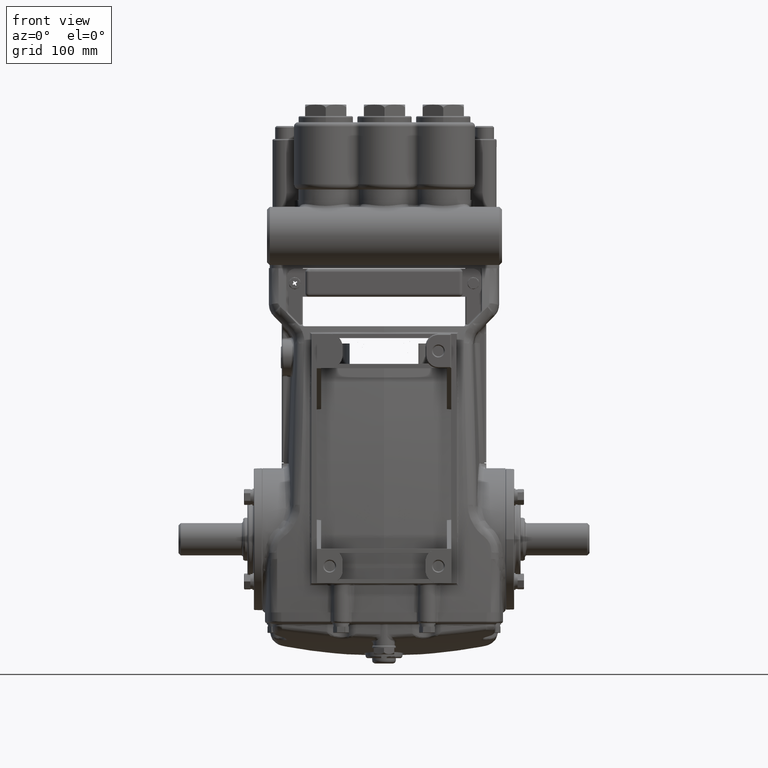
[diagram: clean part render]
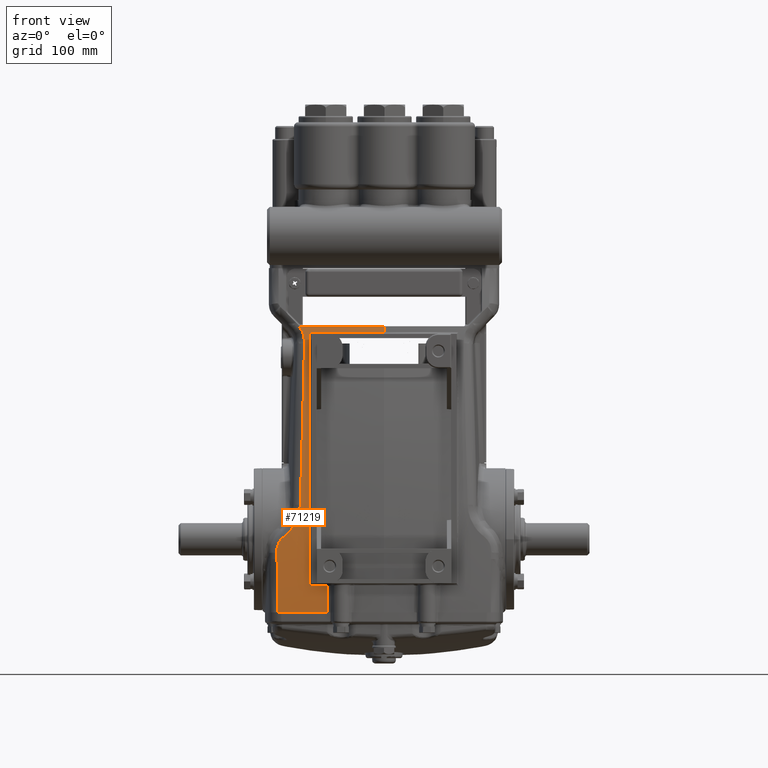
[diagram: same view with one face highlighted and labeled with its STEP entity id]
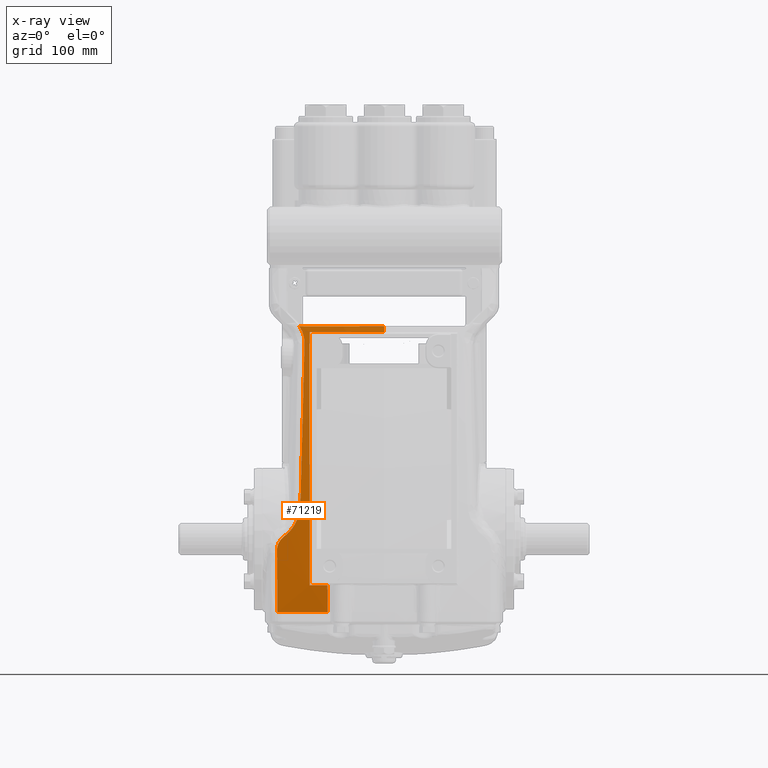
[diagram: x-ray of the same camera — body ghosted, the highlighted face saturated]
A machine part, front view. The second image highlights one B-rep face of the part: STEP entity #71219.
The next image is the same camera in x-ray: the body ghosted, the highlighted face saturated — about 0% of this face is hidden behind the body in this view.
In plain terms, the highlighted face is a freeform B-spline surface patch.
Its self-contained STEP definition (entity closure, byte-faithful):
#237 = CARTESIAN_POINT ( 'NONE',  ( 2.209056378447011415, 1.274878837563560019, 22.31317151381723818 ) ) ;
#361 = CARTESIAN_POINT ( 'NONE',  ( -19.07910757670188318, 0.7066012717780976171, 5.790622618753714868 ) ) ;
#398 = EDGE_CURVE ( 'NONE', #64301, #34099, #56145, .T. ) ;
#714 = CARTESIAN_POINT ( 'NONE',  ( -0.07983841861347214242, -2.629684021970013497, 5.790622618753832995 ) ) ;
#745 = CARTESIAN_POINT ( 'NONE',  ( -2.727247038970875170, -2.279849238441235215, 6.050664621962030587 ) ) ;
#835 = CARTESIAN_POINT ( 'NONE',  ( -144.4825793243214775, 29.59012067557541670, 22.31317151381291097 ) ) ;
#1193 = CARTESIAN_POINT ( 'NONE',  ( 359.1169036331611437, -1.653543307086620118, 9.921259842519685179 ) ) ;
#1303 = CARTESIAN_POINT ( 'NONE',  ( -3.932040788143863264, -0.3482533733187864189, 14.05189706628552315 ) ) ;
#1682 = CARTESIAN_POINT ( 'NONE',  ( 62.04764018750552168, 0.2987381226801666401, 18.18253429005138599 ) ) ;
#1788 = CARTESIAN_POINT ( 'NONE',  ( -3.314962281032448832, -0.4440046671440017190, 14.05189706628556934 ) ) ;
#2161 = CARTESIAN_POINT ( 'NONE',  ( 126.8748915097407206, -3.228346456692912092, -2.677165354330708791 ) ) ;
#2275 = CARTESIAN_POINT ( 'NONE',  ( -3.778954195183650278, -2.325712637315117348, 5.790622618753813455 ) ) ;
#2639 = CARTESIAN_POINT ( 'NONE',  ( 53.59953785569567941, -1.653543307086620118, 9.921259842519685179 ) ) ;
#2746 = CARTESIAN_POINT ( 'NONE',  ( -3.124963161517196664, 0.5059454523842676910, 18.18253429005145705 ) ) ;
#2794 = CARTESIAN_POINT ( 'NONE',  ( -3.471718538593535630, -2.849516356149189189, 0.2632752468204984653 ) ) ;
#3123 = CARTESIAN_POINT ( 'NONE',  ( 1082.710664685053416, -1.653543307086620118, 9.921259842519685179 ) ) ;
#3236 = CARTESIAN_POINT ( 'NONE',  ( -3.215356620298713608, -2.410035385396087193, 5.790622618753858752 ) ) ;
#3331 = CARTESIAN_POINT ( 'NONE',  ( -3.899485247603368787, -2.813914629645424270, -0.2508781873148046571 ) ) ;
#3728 = CARTESIAN_POINT ( 'NONE',  ( -1.438964567690048879, 1.317849307072286535, 22.31317151381717423 ) ) ;
#3776 = CARTESIAN_POINT ( 'NONE',  ( -3.383371777469394992, -2.856033852310978283, 0.3600537903888629820 ) ) ;
#3785 = CARTESIAN_POINT ( 'NONE',  ( -2.927581108300223001, -2.010149281768078389, 7.396147296306548213 ) ) ;
#4212 = CARTESIAN_POINT ( 'NONE',  ( -1.457010240490788977, -3.183693529612289463, -2.677165354330698133 ) ) ;
#4332 = CARTESIAN_POINT ( 'NONE',  ( -421.7370434650436550, 80.38352277759204867, 1.566656130829030769 ) ) ;
#4653 = VERTEX_POINT ( 'NONE', #27195 ) ;
#4698 = CARTESIAN_POINT ( 'NONE',  ( -0.2202293759766089376, -3.156986609940064525, 1.566656130829040539 ) ) ;
#4825 = CARTESIAN_POINT ( 'NONE',  ( -1151.738199203865406, 225.7208491890186224, -2.677165354325142577 ) ) ;
#5208 = CARTESIAN_POINT ( 'NONE',  ( -1.137785550299992732, 0.3247847806245039992, 18.18253429005138599 ) ) ;
#5269 = CARTESIAN_POINT ( 'NONE',  ( -2.922579338172612839, -2.015949865813265074, 7.368952017584696534 ) ) ;
#5327 = CARTESIAN_POINT ( 'NONE',  ( -634.4846974985816814, 124.2645913846833992, 9.921259842510165683 ) ) ;
#5684 = CARTESIAN_POINT ( 'NONE',  ( -2.246878270217475215, -0.5719395709258071614, 14.05189706628562085 ) ) ;
#6086 = CARTESIAN_POINT ( 'NONE',  ( -3.005102302106316792, -2.648339109513909051, 3.241354714735967146 ) ) ;
#6151 = CARTESIAN_POINT ( 'NONE',  ( 6.204764018750550392, 0.2987381226801666401, 18.18253429005138599 ) ) ;
#6274 = CARTESIAN_POINT ( 'NONE',  ( -276.1950919792001855, 51.32254168434540986, -2.677165354329391178 ) ) ;
#6638 = CARTESIAN_POINT ( 'NONE',  ( 40.47651231512042358, -0.6774025922032267388, 14.05189706628553736 ) ) ;
#6753 = CARTESIAN_POINT ( 'NONE',  ( -77.27900964434846287, 14.25164647728743184, 14.05189706628400259 ) ) ;
#6970 = CARTESIAN_POINT ( 'NONE',  ( -3.284731147895449510, -2.859902380865102511, 0.5052421615295926705 ) ) ;
#7110 = CARTESIAN_POINT ( 'NONE',  ( 3.291699112652716863, -2.629684021970013497, 5.790622618753832995 ) ) ;
#7140 = CARTESIAN_POINT ( 'NONE',  ( -2.727197651468390660, -2.614629357653139863, 3.737664994406225460 ) ) ;
#7224 = CARTESIAN_POINT ( 'NONE',  ( -68.19094939856702808, 14.39368885396081410, 22.31317151381527353 ) ) ;
#7442 = CARTESIAN_POINT ( 'NONE',  ( -3.068382760830119960, -2.841967849552637926, 1.127901798132976419 ) ) ;
#7585 = CARTESIAN_POINT ( 'NONE',  ( -0.2757142975349246572, -0.6763127173498466593, 14.05189706628557644 ) ) ;
#7699 = CARTESIAN_POINT ( 'NONE',  ( -45.14899423935806055, 5.300766092834444443, -2.677165354330512059 ) ) ;
#8013 = VERTEX_POINT ( 'NONE', #19803 ) ;
#8092 = CARTESIAN_POINT ( 'NONE',  ( -5.245148147835385379E-15, 1.274878837563560019, 22.31317151381723818 ) ) ;
#8123 = CARTESIAN_POINT ( 'NONE',  ( -2.727159468247274177, -2.880679323135449721, 1.415170690656039287 ) ) ;
#8206 = CARTESIAN_POINT ( 'NONE',  ( -10.58819436826444260, 1.943729315085312104, 18.18253429005122968 ) ) ;
#8564 = CARTESIAN_POINT ( 'NONE',  ( 136.5048084125121193, 0.2987381226801666401, 18.18253429005138599 ) ) ;
#8675 = CARTESIAN_POINT ( 'NONE',  ( -7.828928115904352225, -1.534307532022772591, 5.790622618753807238 ) ) ;
#8878 = CARTESIAN_POINT ( 'NONE',  ( -1.791694926762982032, -2.047537429967021705, 7.795279527559021204 ) ) ;
#9029 = CARTESIAN_POINT ( 'NONE',  ( 424.4234939245266105, -3.157679832960618604, 1.566656130829030769 ) ) ;
#9139 = CARTESIAN_POINT ( 'NONE',  ( -3.281365317806956838, 0.5272576206101591278, 18.18253429005143218 ) ) ;
#9529 = CARTESIAN_POINT ( 'NONE',  ( 40.92738435798089114, -3.228346456692912092, -2.677165354330708791 ) ) ;
#9646 = CARTESIAN_POINT ( 'NONE',  ( -4.465848995439372082, -1.228054229619339077, 9.921259842519686956 ) ) ;
#9859 = CARTESIAN_POINT ( 'NONE',  ( -2.926178195007508975, -1.932925588908157799, 7.795279527559078048 ) ) ;
#9961 = CARTESIAN_POINT ( 'NONE',  ( -2.727289559679429765, -1.998272789893569934, 7.583530343576547317 ) ) ;
#10015 = CARTESIAN_POINT ( 'NONE',  ( 622.9538987220580566, 1.274878837563560019, 22.31317151381723818 ) ) ;
#10120 = CARTESIAN_POINT ( 'NONE',  ( -3.596762233147841936, -2.354501373640813799, 5.790622618753825890 ) ) ;
#10269 = B_SPLINE_CURVE_WITH_KNOTS ( 'NONE', 3,
 ( #74771, #30539, #7442, #60504, #90452, #53119, #51658, #44292, #43794, #83078, #74295, #6970 ),
 .UNSPECIFIED., .F., .F.,
 ( 4, 2, 2, 2, 2, 4 ),
 ( 0.000000000000000000, 0.005028319086830083766, 0.01005663817366016753, 0.01257079771707521158, 0.01508495726049025216, 0.02011327634732034547 ),
 .UNSPECIFIED. ) ;
#10492 = CARTESIAN_POINT ( 'NONE',  ( 330.8157608215982464, -2.629684021970013497, 5.790622618753832995 ) ) ;
#10599 = CARTESIAN_POINT ( 'NONE',  ( -3.743440484734033902, -1.355363442417273356, 9.921259842519656758 ) ) ;
#11097 = CARTESIAN_POINT ( 'NONE',  ( -4.614591127105060586, 0.7538549543985912926, 18.18253429005138599 ) ) ;
#11585 = CARTESIAN_POINT ( 'NONE',  ( -0.5626853564969841459, 1.280885666233809950, 22.31317151381732344 ) ) ;
#11607 = CARTESIAN_POINT ( 'NONE',  ( -2.061199718059960606, -3.138240205909955449, -2.677165354330706570 ) ) ;
#11968 = CARTESIAN_POINT ( 'NONE',  ( 2412.289565264140492, 1.274878837563560019, 22.31317151381723818 ) ) ;
#11969 = CARTESIAN_POINT ( 'NONE',  ( 1.404577764583735402E-17, -2.114775635248775210, 7.795279527559055843 ) ) ;
#12059 = EDGE_CURVE ( 'NONE', #34099, #81124, #40420, .T. ) ;
#12074 = CARTESIAN_POINT ( 'NONE',  ( -1.778699838802215494, -2.563449299936535919, 5.790622618753828554 ) ) ;
#12163 = CARTESIAN_POINT ( 'NONE',  ( -3.660395066662605945, -2.831232458268559515, 0.1015772475712229811 ) ) ;
#12197 = CARTESIAN_POINT ( 'NONE',  ( -1759.642587011520618, 347.4072062026842218, 5.790622618739513783 ) ) ;
#12442 = VERTEX_POINT ( 'NONE', #28422 ) ;
#12569 = CARTESIAN_POINT ( 'NONE',  ( -1.752027152887900563, -3.093504780979589697, 1.566656130829027660 ) ) ;
#12697 = CARTESIAN_POINT ( 'NONE',  ( -201.7013017686373075, 40.98744454178636687, 22.31317151381114172 ) ) ;
#13002 = CARTESIAN_POINT ( 'NONE',  ( -3.060185611310922482, -2.832064026058386474, 1.260503522742631333 ) ) ;
#13069 = CARTESIAN_POINT ( 'NONE',  ( -0.7478321838600474614, -1.642325017791671726, 9.921259842519724259 ) ) ;
#13176 = CARTESIAN_POINT ( 'NONE',  ( -228.1974173340079233, 44.31289035573745849, 14.05189706628081581 ) ) ;
#13550 = CARTESIAN_POINT ( 'NONE',  ( -2.911861396086488973, 1.454600600577739433, 22.31317151381736252 ) ) ;
#13659 = CARTESIAN_POINT ( 'NONE',  ( -1619.854725712314121, 319.0350457593500551, 1.566656130829030769 ) ) ;
#14013 = CARTESIAN_POINT ( 'NONE',  ( 4.937548668979076183, -2.629684021970013497, 5.790622618753832995 ) ) ;
#14135 = CARTESIAN_POINT ( 'NONE',  ( -16.77491206078096297, -0.3510309096318128819, -2.677165354330649727 ) ) ;
#14509 = CARTESIAN_POINT ( 'NONE',  ( 0.000000000000000000, -2.629684021970013497, 5.790622618753832995 ) ) ;
#14539 = ORIENTED_EDGE ( 'NONE', *, *, #15739, .T. ) ;
#14550 = B_SPLINE_SURFACE_WITH_KNOTS ( 'NONE', 3, 3, ( 
 ( #86867, #13659, #12197, #73583, #26965, #86371, #36253 ),
 ( #4825, #35765, #65724, #43586, #28406, #96131, #19099 ),
 ( #95660, #57392, #64775, #94712, #71635, #58353, #56401 ),
 ( #57863, #20551, #27448, #5327, #21031, #42135, #87356 ),
 ( #88324, #4332, #50503, #49031, #80949, #20070, #72623 ),
 ( #6274, #95197, #50006, #79499, #80468, #72123, #65252 ),
 ( #19590, #42644, #79012, #41653, #13176, #27918, #79976 ),
 ( #73107, #34308, #87837, #43118, #64251, #49521, #12697 ),
 ( #35300, #52894, #68596, #96607, #75016, #89756, #835 ),
 ( #22482, #97086, #66680, #15575, #6753, #14627, #52417 ),
 ( #7699, #51438, #23427, #81420, #29350, #37199, #7224 ),
 ( #51933, #67153, #88788, #83348, #21509, #45996, #82385 ),
 ( #16079, #37668, #82853, #45021, #67648, #29825, #30793 ),
 ( #14135, #68125, #361, #15103, #60280, #90225, #90693 ),
 ( #89266, #44060, #30317, #59299, #53372, #74076, #60751 ),
 ( #59790, #22953, #45510, #28881, #75513, #8206, #81911 ),
 ( #38165, #75989, #8675, #58818, #21985, #38635, #36723 ),
 ( #44545, #74542, #69563, #39107, #85283, #76468, #84312 ),
 ( #55312, #54342, #31262, #53865, #78400, #11097, #92163 ),
 ( #17019, #24397, #46945, #9646, #61225, #55797, #91187 ),
 ( #24873, #46473, #85764, #47444, #17987, #17511, #77429 ),
 ( #25366, #48403, #63160, #39603, #1303, #47918, #23922 ),
 ( #77907, #40549, #2275, #10599, #69076, #76946, #61713 ),
 ( #83833, #32247, #10120, #62656, #16547, #54820, #62191 ),
 ( #84795, #18483, #40079, #41049, #1788, #9139, #31761 ),
 ( #70045, #70525, #3236, #91678, #33224, #2746, #32721 ),
 ( #93109, #92631, #25847, #79370, #86250, #43003, #13550 ),
 ( #72508, #35184, #42013, #19944, #35654, #26833, #19464 ),
 ( #72989, #18980, #65131, #80829, #5684, #49395, #87233 ),
 ( #88210, #12569, #12074, #94085, #95077, #86749, #79851 ),
 ( #4212, #57268, #95542, #65605, #27804, #42515, #71995 ),
 ( #56790, #71510, #78892, #71024, #50858, #28282, #3728 ),
 ( #94596, #48909, #58235, #49881, #57745, #5208, #87713 ),
 ( #20922, #20434, #26337, #13069, #50378, #64648, #80359 ),
 ( #33702, #63645, #34186, #93594, #56280, #64126, #11585 ),
 ( #41524, #4698, #34688, #27323, #7585, #43470, #96971 ),
 ( #96493, #29240, #714, #59182, #60645, #81298, #73468 ),
 ( #81786, #74427, #14509, #37091, #28767, #67529, #8092 ),
 ( #21860, #90105, #37553, #51327, #82268, #29709, #237 ),
 ( #36611, #58705, #7110, #88676, #68014, #59665, #67045 ),
 ( #30677, #89636, #14013, #74909, #66563, #6151, #30210 ),
 ( #90587, #14993, #51810, #89154, #60162, #44428, #52298 ),
 ( #73949, #22366, #23318, #15460, #22838, #44911, #52783 ),
 ( #82742, #53259, #45392, #75395, #38050, #66094, #83231 ),
 ( #36127, #96022, #21391, #43936, #6638, #76830, #85184 ),
 ( #9529, #84203, #53755, #2639, #91075, #1682, #39495 ),
 ( #68963, #45889, #68486, #93009, #25740, #69461, #62080 ),
 ( #38993, #31653, #24285, #75871, #70410, #8564, #55687 ),
 ( #2161, #61607, #24765, #92520, #23813, #16909, #31152 ),
 ( #91566, #32132, #39968, #54227, #46362, #76354, #61113 ),
 ( #92051, #38520, #10492, #1193, #83722, #46830, #54704 ),
 ( #16431, #9029, #84677, #17396, #47339, #77325, #10015 ),
 ( #47808, #77798, #32612, #69935, #62550, #25250, #55206 ),
 ( #40444, #17882, #15961, #3123, #33110, #63053, #42394 ),
 ( #93970, #72391, #56168, #41414, #48792, #19357, #41904 ),
 ( #35551, #78285, #71889, #94967, #48286, #72875, #11968 ) ),
 .UNSPECIFIED., .F., .F., .F.,
 ( 4, 3, 3, 3, 3, 3, 3, 1, 1, 1, 1, 1, 1, 1, 1, 1, 1, 1, 1, 1, 1, 1, 1, 3, 3, 3, 3, 3, 3, 4 ),
 ( 4, 3, 4 ),
 ( -140.6602418296972417, -46.34945069376181692, -14.91252031511667653, -4.433543522234962175, -0.9405512579410577612, 0.2237794968235768955, 0.6118897484117884478, 0.6451591311587479005, 0.6656908127142201481, 0.6779313976040497458, 0.7001579938589312935, 0.7121351037956823449, 0.7328303451265104629, 0.7429230029103132127, 0.7651453021765547424, 0.8217788134722864291, 0.8537625969639116574, 0.8807560474209973345, 0.8863934047552577411, 0.9159917760011976329, 0.9494142179265985249, 0.9620009169027918805, 0.9811731828007156375, 1.000000000000000000, 1.388110251588211552, 2.552441006352846209, 6.045433270646750401, 16.52441006352846387, 47.96134044217360781, 142.2721315781090539 ),
 ( 0.000000000000000000, 1.000000000000000000, 2.000000000000000000 ),
 .UNSPECIFIED. ) ;
#14627 = CARTESIAN_POINT ( 'NONE',  ( -82.27143326217704100, 16.22222164332594829, 18.18253429004934318 ) ) ;
#14993 = CARTESIAN_POINT ( 'NONE',  ( 9.030287104777164231, -3.157679832960618604, 1.566656130829030769 ) ) ;
#15103 = CARTESIAN_POINT ( 'NONE',  ( -20.23120533466232729, 1.912226860004982321, 9.921259842519448924 ) ) ;
#15297 = VERTEX_POINT ( 'NONE', #74423 ) ;
#15460 = CARTESIAN_POINT ( 'NONE',  ( 16.07986135670870098, -1.653543307086620118, 9.921259842519685179 ) ) ;
#15529 = B_SPLINE_CURVE_WITH_KNOTS ( 'NONE', 3,
 ( #37122, #38082, #8123, #83266, #7140, #74459, #60193, #745, #39023, #44940 ),
 .UNSPECIFIED., .F., .F.,
 ( 4, 2, 2, 2, 4 ),
 ( 0.000000000000000000, 0.1186607436942884591, 0.1483259296178605635, 0.1779911155414326818, 0.2373214873885769183 ),
 .UNSPECIFIED. ) ;
#15575 = CARTESIAN_POINT ( 'NONE',  ( -72.28658602651988474, 12.28107131124891538, 9.921259842518661998 ) ) ;
#15739 = EDGE_CURVE ( 'NONE', #8013, #67514, #66980, .T. ) ;
#15794 = B_SPLINE_CURVE_WITH_KNOTS ( 'NONE', 3,
 ( #92243, #12163, #79465, #70616, #63249, #32810, #72089, #93198, #25940, #47529, #48999, #78981, #41143, #3331, #34781, #56369, #55879, #40640, #41620, #33316 ),
 .UNSPECIFIED., .F., .F.,
 ( 4, 2, 2, 2, 2, 2, 2, 2, 2, 4 ),
 ( 0.000000000000000000, 0.002214905678868939014, 0.004429811357737877160, 0.005537264197172347968, 0.006644717036606817041, 0.008859622715475757790, 0.01107452839434469767, 0.01328943407321363929, 0.01550433975208257917, 0.01771924543095151905 ),
 .UNSPECIFIED. ) ;
#15961 = CARTESIAN_POINT ( 'NONE',  ( 997.3848311337741279, -2.629684021970013497, 5.790622618753832995 ) ) ;
#16079 = CARTESIAN_POINT ( 'NONE',  ( -20.82835237200626111, 0.4563686621490810058, -2.677165354330630187 ) ) ;
#16431 = CARTESIAN_POINT ( 'NONE',  ( 384.7174129650202303, -3.228346456692912092, -2.677165354330708791 ) ) ;
#16547 = CARTESIAN_POINT ( 'NONE',  ( -3.525087354970080078, -0.4133123930586221073, 14.05189706628552848 ) ) ;
#16909 = CARTESIAN_POINT ( 'NONE',  ( 192.3476845812670888, 0.2987381226801666401, 18.18253429005138599 ) ) ;
#17019 = CARTESIAN_POINT ( 'NONE',  ( -4.498768834681484030, -2.796300118709532434, -2.677165354330709679 ) ) ;
#17228 = CARTESIAN_POINT ( 'NONE',  ( 1.404577764583735402E-17, -2.114775635248775210, 7.795279527559055843 ) ) ;
#17396 = CARTESIAN_POINT ( 'NONE',  ( 503.8356558435395414, -1.653543307086620118, 9.921259842519685179 ) ) ;
#17511 = CARTESIAN_POINT ( 'NONE',  ( -4.187405417955849529, 0.6717499539009327281, 18.18253429005142863 ) ) ;
#17569 = CARTESIAN_POINT ( 'NONE',  ( -3.060185611310922482, -2.832064026058386474, 1.260503522742631333 ) ) ;
#17882 = CARTESIAN_POINT ( 'NONE',  ( 912.0589975824934754, -3.157679832960618604, 1.566656130829030769 ) ) ;
#17939 = EDGE_CURVE ( 'NONE', #4653, #15297, #25563, .T. ) ;
#17987 = CARTESIAN_POINT ( 'NONE',  ( -4.211177497756748878, -0.2999606666474618488, 14.05189706628556756 ) ) ;
#18483 = CARTESIAN_POINT ( 'NONE',  ( -3.415753170708925257, -2.909646626513695988, 1.566656130829034543 ) ) ;
#18980 = CARTESIAN_POINT ( 'NONE',  ( -2.222110586377364694, -3.055082771975447642, 1.566656130829059412 ) ) ;
#19099 = CARTESIAN_POINT ( 'NONE',  ( -1803.825530209480348, 360.1125127956930214, 22.31317151376157426 ) ) ;
#19357 = CARTESIAN_POINT ( 'NONE',  ( 1755.948217306405922, 0.2987381226801666401, 18.18253429005138599 ) ) ;
#19464 = CARTESIAN_POINT ( 'NONE',  ( -2.614699438417484423, 1.418845656474065908, 22.31317151381744068 ) ) ;
#19590 = CARTESIAN_POINT ( 'NONE',  ( -166.7522035761170685, 29.52275324626126718, -2.677165354329922309 ) ) ;
#19803 = CARTESIAN_POINT ( 'NONE',  ( -3.100783462000404889, -1.910357046102326040, 7.795279527559055843 ) ) ;
#19944 = CARTESIAN_POINT ( 'NONE',  ( -2.650420828483864177, -1.505888080752980862, 9.921259842519779326 ) ) ;
#20070 = CARTESIAN_POINT ( 'NONE',  ( -566.1332957960873955, 112.6020448589502223, 18.18253429003659605 ) ) ;
#20434 = CARTESIAN_POINT ( 'NONE',  ( -0.6708934127552267368, -3.148635937866493428, 1.566656130829045424 ) ) ;
#20551 = CARTESIAN_POINT ( 'NONE',  ( -541.5488116897706732, 104.2486750757678493, 1.566656130829030769 ) ) ;
#20922 = CARTESIAN_POINT ( 'NONE',  ( -0.6324240272028155418, -3.220389758699198079, -2.677165354330706126 ) ) ;
#20959 = CARTESIAN_POINT ( 'NONE',  ( -2.908924084382254360, -2.054030274880821683, 7.175787866453346098 ) ) ;
#21031 = CARTESIAN_POINT ( 'NONE',  ( -680.9526404029862761, 134.4966219910875509, 14.05189706627125723 ) ) ;
#21391 = CARTESIAN_POINT ( 'NONE',  ( 34.56284068285353328, -2.629684021970013497, 5.790622618753832995 ) ) ;
#21509 = CARTESIAN_POINT ( 'NONE',  ( -43.74158571331304302, 7.571370059854093171, 14.05189706628470958 ) ) ;
#21839 = VERTEX_POINT ( 'NONE', #23685 ) ;
#21860 = CARTESIAN_POINT ( 'NONE',  ( 1.364246145266030830, -3.228346456692912092, -2.677165354330708791 ) ) ;
#21985 = CARTESIAN_POINT ( 'NONE',  ( -8.340971563886773410, 0.5199671747855680870, 14.05189706628545743 ) ) ;
#22347 = CARTESIAN_POINT ( 'NONE',  ( -3.011382007615732714, -1.922030318931514214, 7.795279527559055843 ) ) ;
#22366 = CARTESIAN_POINT ( 'NONE',  ( 13.54543065716574723, -3.157679832960618604, 1.566656130829030769 ) ) ;
#22482 = CARTESIAN_POINT ( 'NONE',  ( -57.30931517303395850, 7.722964808177126272, -2.677165354330453440 ) ) ;
#22838 = CARTESIAN_POINT ( 'NONE',  ( 17.34707670648017697, -0.6774025922032267388, 14.05189706628553736 ) ) ;
#22953 = CARTESIAN_POINT ( 'NONE',  ( -9.052064024317170166, -1.818668471680132903, 1.566656130829030769 ) ) ;
#23318 = CARTESIAN_POINT ( 'NONE',  ( 14.81264600693722855, -2.629684021970013497, 5.790622618753832995 ) ) ;
#23427 = CARTESIAN_POINT ( 'NONE',  ( -52.82964595909447780, 7.429327683180709130, 5.790622618753439532 ) ) ;
#23685 = CARTESIAN_POINT ( 'NONE',  ( -2.727139114682765708, -3.045868397914718528, -1.695515792455213555 ) ) ;
#23813 = CARTESIAN_POINT ( 'NONE',  ( 179.2531259669618464, -0.6774025922032267388, 14.05189706628553736 ) ) ;
#23922 = CARTESIAN_POINT ( 'NONE',  ( -3.868059063795630248, 1.592974043729076916, 22.31317151381721686 ) ) ;
#24285 = CARTESIAN_POINT ( 'NONE',  ( 108.6260707175396902, -2.629684021970013497, 5.790622618753832995 ) ) ;
#24397 = CARTESIAN_POINT ( 'NONE',  ( -4.487795554934113973, -2.727819248482605374, 1.566656130829030769 ) ) ;
#24600 = CARTESIAN_POINT ( 'NONE',  ( -0.08316610338612535902, -2.114775635248781871, 7.795279527559023869 ) ) ;
#24745 = EDGE_CURVE ( 'NONE', #8013, #32254, #38621, .T. ) ;
#24765 = CARTESIAN_POINT ( 'NONE',  ( 153.0640087383513901, -2.629684021970013497, 5.790622618753832995 ) ) ;
#24834 = CARTESIAN_POINT ( 'NONE',  ( -2.067385819063694896, -3.124075743929132010, -2.022648578200927361 ) ) ;
#24873 = CARTESIAN_POINT ( 'NONE',  ( -4.306265816960345383, -2.833184153797152494, -2.677165354330705682 ) ) ;
#25250 = CARTESIAN_POINT ( 'NONE',  ( 750.7764462688166986, 0.2987381226801666401, 18.18253429005138599 ) ) ;
#25366 = CARTESIAN_POINT ( 'NONE',  ( -4.060004236840331515, -2.877089212370625315, -2.677165354330703906 ) ) ;
#25421 = CARTESIAN_POINT ( 'NONE',  ( -3.568002968774048878, -2.840938509129116163, 0.1731925425339789215 ) ) ;
#25563 = B_SPLINE_CURVE_WITH_KNOTS ( 'NONE', 3,
 ( #41500, #35153, #65581, #86722 ),
 .UNSPECIFIED., .F., .F.,
 ( 4, 4 ),
 ( 0.000000000000000000, 0.006128008889076994210 ),
 .UNSPECIFIED. ) ;
#25740 = CARTESIAN_POINT ( 'NONE',  ( 75.17066572808077751, -0.6774025922032267388, 14.05189706628553736 ) ) ;
#25847 = CARTESIAN_POINT ( 'NONE',  ( -3.008782103149817644, -2.437527964115577817, 5.790622618753870299 ) ) ;
#25940 = CARTESIAN_POINT ( 'NONE',  ( -3.807984635001858909, -2.817416876330520292, -0.05559544367379879587 ) ) ;
#26063 = CARTESIAN_POINT ( 'NONE',  ( -3.911993343391684697, -2.837107152107327224, -0.7206767203377140163 ) ) ;
#26337 = CARTESIAN_POINT ( 'NONE',  ( -0.7093627983076363774, -2.619552929775476269, 5.790622618753860529 ) ) ;
#26833 = CARTESIAN_POINT ( 'NONE',  ( -2.626606568439610712, 0.4439344107317169108, 18.18253429005155297 ) ) ;
#26965 = CARTESIAN_POINT ( 'NONE',  ( -2039.218309609921789, 405.0478168971378068, 14.05189706624257795 ) ) ;
#27195 = CARTESIAN_POINT ( 'NONE',  ( -3.920247412114252761, -2.823226641368635548, -0.4799576262710872898 ) ) ;
#27221 = CARTESIAN_POINT ( 'NONE',  ( -2.274587066048683770, -2.050922182848198716, 7.583498126157362407 ) ) ;
#27323 = CARTESIAN_POINT ( 'NONE',  ( -0.2572193236821523343, -1.652585649510848631, 9.921259842519713601 ) ) ;
#27448 = CARTESIAN_POINT ( 'NONE',  ( -588.0167545941772005, 114.0325607782792616, 5.790622618749073247 ) ) ;
#27804 = CARTESIAN_POINT ( 'NONE',  ( -1.594130663885086063, -0.6239268239763350321, 14.05189706628549651 ) ) ;
#27858 = CARTESIAN_POINT ( 'NONE',  ( -2.907591157748416144, -2.043766306204759520, 7.231662708795886907 ) ) ;
#27918 = CARTESIAN_POINT ( 'NONE',  ( -243.5587207734805020, 48.34882938186737533, 18.18253429004509414 ) ) ;
#28282 = CARTESIAN_POINT ( 'NONE',  ( -1.399505760590513015, 0.3395852130249805145, 18.18253429005133626 ) ) ;
#28406 = CARTESIAN_POINT ( 'NONE',  ( -1586.463086540943095, 314.8640852617876931, 14.05189706625213830 ) ) ;
#28422 = CARTESIAN_POINT ( 'NONE',  ( -3.637192581770869904, -2.833736751058538061, 0.1189090093261813835 ) ) ;
#28767 = CARTESIAN_POINT ( 'NONE',  ( -2.622574073917692690E-15, -0.6774025922032267388, 14.05189706628553736 ) ) ;
#28881 = CARTESIAN_POINT ( 'NONE',  ( -9.820129196290814377, -0.1615420302438044520, 9.921259842519607020 ) ) ;
#29240 = CARTESIAN_POINT ( 'NONE',  ( -0.07300827702222026372, -3.157679832960618604, 1.566656130829030769 ) ) ;
#29350 = CARTESIAN_POINT ( 'NONE',  ( -60.51029767883075294, 10.91150826857076339, 14.05189706628435609 ) ) ;
#29608 = CARTESIAN_POINT ( 'NONE',  ( -2.071721755139915633, -3.112803232902098927, -1.695523269282090295 ) ) ;
#29709 = CARTESIAN_POINT ( 'NONE',  ( 2.068254672916848058, 0.2987381226801666401, 18.18253429005138599 ) ) ;
#29776 = EDGE_CURVE ( 'NONE', #73451, #46159, #45860, .T. ) ;
#29825 = CARTESIAN_POINT ( 'NONE',  ( -28.50900409174258954, 5.513352397145471429, 18.18253429005075716 ) ) ;
#29968 = CARTESIAN_POINT ( 'NONE',  ( -9.198416370227159548E-16, -2.128734395688921754, 7.724687316200646414 ) ) ;
#30210 = CARTESIAN_POINT ( 'NONE',  ( 6.627169135341042683, 1.274878837563560019, 22.31317151381723818 ) ) ;
#30317 = CARTESIAN_POINT ( 'NONE',  ( -14.25760209350294261, -0.2537882155651324800, 5.790622618753754836 ) ) ;
#30539 = CARTESIAN_POINT ( 'NONE',  ( -3.062124222617140568, -2.837389290692219124, 1.193791205635295061 ) ) ;
#30677 = CARTESIAN_POINT ( 'NONE',  ( 4.092738435798090713, -3.228346456692912092, -2.677165354330708791 ) ) ;
#30793 = CARTESIAN_POINT ( 'NONE',  ( -30.04513443568984243, 6.795472943153519019, 22.31317151381645303 ) ) ;
#31152 = CARTESIAN_POINT ( 'NONE',  ( 205.4422431955723027, 1.274878837563560019, 22.31317151381723818 ) ) ;
#31262 = CARTESIAN_POINT ( 'NONE',  ( -4.614591127105057922, -2.174567190251592841, 5.790622618753832995 ) ) ;
#31481 = CARTESIAN_POINT ( 'NONE',  ( -2.640519679465509917, -1.968168538549596835, 7.795279527559099364 ) ) ;
#31653 = CARTESIAN_POINT ( 'NONE',  ( 99.33315815254880476, -3.157679832960618604, 1.566656130829030769 ) ) ;
#31761 = CARTESIAN_POINT ( 'NONE',  ( -3.247768354581465289, 1.498519908364319919, 22.31317151381729502 ) ) ;
#32132 = CARTESIAN_POINT ( 'NONE',  ( 180.6057420955432633, -3.157679832960618604, 1.566656130829030769 ) ) ;
#32247 = CARTESIAN_POINT ( 'NONE',  ( -3.632599672236724420, -2.876950960039121874, 1.566656130829023885 ) ) ;
#32254 = VERTEX_POINT ( 'NONE', #95006 ) ;
#32573 = EDGE_CURVE ( 'NONE', #15297, #46159, #88649, .T. ) ;
#32612 = CARTESIAN_POINT ( 'NONE',  ( 597.4433889464685308, -2.629684021970013497, 5.790622618753832995 ) ) ;
#32721 = CARTESIAN_POINT ( 'NONE',  ( -3.094832008590024497, 1.477939064977719319, 22.31317151381732344 ) ) ;
#32768 = CARTESIAN_POINT ( 'NONE',  ( -3.502742858966411355, -2.846939579627539629, 0.2323444186623865593 ) ) ;
#32810 = CARTESIAN_POINT ( 'NONE',  ( -3.772999451482565991, -2.820259692799361950, -0.009385902906476633126 ) ) ;
#33110 = CARTESIAN_POINT ( 'NONE',  ( 1168.036498236332363, -0.6774025922032267388, 14.05189706628553736 ) ) ;
#33224 = CARTESIAN_POINT ( 'NONE',  ( -3.155094314444369274, -0.4660481602091839370, 14.05189706628559065 ) ) ;
#33316 = CARTESIAN_POINT ( 'NONE',  ( -3.920247412114252761, -2.823226641368635548, -0.4799576262710872898 ) ) ;
#33702 = CARTESIAN_POINT ( 'NONE',  ( -0.3874714434721882039, -3.225393750894484324, -2.677165354330706570 ) ) ;
#33761 = CARTESIAN_POINT ( 'NONE',  ( -2.947053783534603344, -1.992240931884360355, 7.476996451379341657 ) ) ;
#33911 = CARTESIAN_POINT ( 'NONE',  ( -3.906084638193655589, -2.892280389825418130, -2.024690678454016624 ) ) ;
#34099 = VERTEX_POINT ( 'NONE', #55899 ) ;
#34186 = CARTESIAN_POINT ( 'NONE',  ( -0.4458760811471194074, -2.625713275214311082, 5.790622618753861417 ) ) ;
#34207 = CARTESIAN_POINT ( 'NONE',  ( -3.139645971332099883, -3.022356532156543985, -2.677165354330707903 ) ) ;
#34241 = CARTESIAN_POINT ( 'NONE',  ( -3.040584251767560531, -1.936367780955209117, 7.703448996730625886 ) ) ;
#34308 = CARTESIAN_POINT ( 'NONE',  ( -142.1762509406805464, 24.69816741518186376, 1.566656130829030769 ) ) ;
#34688 = CARTESIAN_POINT ( 'NONE',  ( -0.2387243498293800392, -2.628858581671850825, 5.790622618753852535 ) ) ;
#34781 = CARTESIAN_POINT ( 'NONE',  ( -3.906315597305390241, -2.814391410439806673, -0.2790312147353713468 ) ) ;
#34816 = FACE_OUTER_BOUND ( 'NONE', #46563, .T. ) ;
#34858 = ORIENTED_EDGE ( 'NONE', *, *, #29776, .F. ) ;
#35082 = CARTESIAN_POINT ( 'NONE',  ( -0.9109639861827816265, -2.143029113876045777, 7.583443054903415970 ) ) ;
#35153 = CARTESIAN_POINT ( 'NONE',  ( -3.915682133478878058, -2.828318557869944794, -0.5601083085780860227 ) ) ;
#35184 = CARTESIAN_POINT ( 'NONE',  ( -2.674235088528118087, -3.007565668344890142, 1.566656130829055860 ) ) ;
#35300 = CARTESIAN_POINT ( 'NONE',  ( -93.79027797406166655, 14.98956095420517265, -2.677165354330276248 ) ) ;
#35551 = CARTESIAN_POINT ( 'NONE',  ( 1489.756790630504156, -3.228346456692912092, -2.677165354330708791 ) ) ;
#35654 = CARTESIAN_POINT ( 'NONE',  ( -2.638513698461737444, -0.5309768350106319756, 14.05189706628566704 ) ) ;
#35765 = CARTESIAN_POINT ( 'NONE',  ( -1260.419421038133123, 247.4395888648226389, 1.566656130829030769 ) ) ;
#36127 = CARTESIAN_POINT ( 'NONE',  ( 28.64916905058662167, -3.228346456692912092, -2.677165354330708791 ) ) ;
#36253 = CARTESIAN_POINT ( 'NONE',  ( -2318.794032208322733, 462.6884275915916191, 22.31317151374564389 ) ) ;
#36297 = EDGE_CURVE ( 'NONE', #32254, #81124, #40157, .T. ) ;
#36611 = CARTESIAN_POINT ( 'NONE',  ( 2.728492290532060771, -3.228346456692912092, -2.677165354330708791 ) ) ;
#36723 = CARTESIAN_POINT ( 'NONE',  ( -8.853015011869192818, 2.574241881593909209, 22.31317151381710673 ) ) ;
#36901 = ORIENTED_EDGE ( 'NONE', *, *, #12059, .T. ) ;
#37091 = CARTESIAN_POINT ( 'NONE',  ( -1.311287036958846345E-15, -1.653543307086620118, 9.921259842519685179 ) ) ;
#37122 = CARTESIAN_POINT ( 'NONE',  ( -2.727139114682765708, -3.045868397914718528, -1.695515792455213555 ) ) ;
#37199 = CARTESIAN_POINT ( 'NONE',  ( -64.35062353869889762, 12.65259856126578875, 18.18253429004981570 ) ) ;
#37458 = CARTESIAN_POINT ( 'NONE',  ( -2.508984040653645664, -3.071212071698896651, -1.695518234778260247 ) ) ;
#37553 = CARTESIAN_POINT ( 'NONE',  ( 1.645849556326358432, -2.629684021970013497, 5.790622618753832995 ) ) ;
#37646 = ORIENTED_EDGE ( 'NONE', *, *, #24745, .F. ) ;
#37668 = CARTESIAN_POINT ( 'NONE',  ( -22.36448271595350690, 0.8330151170060667853, 1.566656130829030769 ) ) ;
#38050 = CARTESIAN_POINT ( 'NONE',  ( 23.12943560864023596, -0.6774025922032267388, 14.05189706628553736 ) ) ;
#38082 = CARTESIAN_POINT ( 'NONE',  ( -2.727144394811704675, -2.994014056415593483, -0.1379272042688086952 ) ) ;
#38165 = CARTESIAN_POINT ( 'NONE',  ( -7.316884667921923935, -2.234963243787232212, -2.677165354330695912 ) ) ;
#38520 = CARTESIAN_POINT ( 'NONE',  ( 302.5146180100349511, -3.157679832960618604, 1.566656130829030769 ) ) ;
#38621 = B_SPLINE_CURVE_WITH_KNOTS ( 'NONE', 3,
 ( #81767, #51787, #61096, #22347, #82246 ),
 .UNSPECIFIED., .F., .F.,
 ( 4, 1, 4 ),
 ( 0.01435714560453692223, 0.01581826224241414391, 0.01705626432255860289 ),
 .UNSPECIFIED. ) ;
#38635 = CARTESIAN_POINT ( 'NONE',  ( -8.596993287877982226, 1.547104528189738648, 18.18253429005128297 ) ) ;
#38835 = CARTESIAN_POINT ( 'NONE',  ( -1.542271919458150453, -2.064636652693911945, 7.795279527559003441 ) ) ;
#38993 = CARTESIAN_POINT ( 'NONE',  ( 90.04024558755793350, -3.228346456692912092, -2.677165354330708791 ) ) ;
#39023 = CARTESIAN_POINT ( 'NONE',  ( -2.727267043782429568, -2.146634652564591406, 6.818558777353077360 ) ) ;
#39107 = CARTESIAN_POINT ( 'NONE',  ( -6.349770483500310370, -0.8527983269934001909, 9.921259842519658534 ) ) ;
#39495 = CARTESIAN_POINT ( 'NONE',  ( 66.27169135341044637, 1.274878837563560019, 22.31317151381723818 ) ) ;
#39522 = ORIENTED_EDGE ( 'NONE', *, *, #72287, .T. ) ;
#39603 = CARTESIAN_POINT ( 'NONE',  ( -3.964031650317979771, -1.318867081842717948, 9.921259842519674521 ) ) ;
#39806 = CARTESIAN_POINT ( 'NONE',  ( -1.031205350982012714, -2.093198511378523641, 7.795279527559025645 ) ) ;
#39968 = CARTESIAN_POINT ( 'NONE',  ( 197.5019467591631042, -2.629684021970013497, 5.790622618753832995 ) ) ;
#40079 = CARTESIAN_POINT ( 'NONE',  ( -3.382156207483432375, -2.386529242652323468, 5.790622618753845430 ) ) ;
#40157 = B_SPLINE_CURVE_WITH_KNOTS ( 'NONE', 3,
 ( #62881, #9859, #31481, #46671, #8878, #38835, #69770, #39806, #68800, #54057, #77636, #24600, #17228 ),
 .UNSPECIFIED., .F., .F.,
 ( 4, 1, 1, 1, 1, 1, 1, 1, 1, 1, 4 ),
 ( 0.01705626432255860289, 0.02248800266875478418, 0.03955954306842568435, 0.04920069791684064664, 0.05733757252449690756, 0.05903689102475137562, 0.06795898995396967845, 0.07803381234323830684, 0.08182793238196484076, 0.08760719812659661931, 0.09328233221348881943 ),
 .UNSPECIFIED. ) ;
#40420 = B_SPLINE_CURVE_WITH_KNOTS ( 'NONE', 3,
 ( #81548, #96260, #29968, #67285 ),
 .UNSPECIFIED., .F., .F.,
 ( 4, 4 ),
 ( 0.8121009433106008979, 0.8290686085197548350 ),
 .UNSPECIFIED. ) ;
#40444 = CARTESIAN_POINT ( 'NONE',  ( 826.7331640312137324, -3.228346456692912092, -2.677165354330708791 ) ) ;
#40549 = CARTESIAN_POINT ( 'NONE',  ( -3.814467905633268430, -2.847916928320172847, 1.566656130829020332 ) ) ;
#40640 = CARTESIAN_POINT ( 'NONE',  ( -3.922138144717616459, -2.819754538314267034, -0.4218929890695401475 ) ) ;
#40757 = CARTESIAN_POINT ( 'NONE',  ( -3.908488453459596723, -2.870187307488286876, -1.372416777360927043 ) ) ;
#41049 = CARTESIAN_POINT ( 'NONE',  ( -3.348559244257940382, -1.415266954898162455, 9.921259842519706496 ) ) ;
#41075 = CARTESIAN_POINT ( 'NONE',  ( -2.065836380770218472, -3.137833906884560431, -2.677165354330710123 ) ) ;
#41102 = CARTESIAN_POINT ( 'NONE',  ( -3.284731147895449510, -2.859902380865102511, 0.5052421615295926705 ) ) ;
#41143 = CARTESIAN_POINT ( 'NONE',  ( -3.881789995949584071, -2.813636024817690817, -0.1954394355861271138 ) ) ;
#41414 = CARTESIAN_POINT ( 'NONE',  ( 1516.866921316188609, -1.653543307086620118, 9.921259842519685179 ) ) ;
#41500 = CARTESIAN_POINT ( 'NONE',  ( -3.920247412114252761, -2.823226641368635548, -0.4799576262710872898 ) ) ;
#41524 = CARTESIAN_POINT ( 'NONE',  ( -0.2017344021238364482, -3.227785450949967050, -2.677165354330708347 ) ) ;
#41551 = CARTESIAN_POINT ( 'NONE',  ( -2.331254629203058037, -3.113240951545977353, -2.677165354330707903 ) ) ;
#41620 = CARTESIAN_POINT ( 'NONE',  ( -3.921897376222315490, -2.821386341982893509, -0.4509898984266939026 ) ) ;
#41653 = CARTESIAN_POINT ( 'NONE',  ( -212.8361138945353161, 40.27695132960754165, 9.921259842516537475 ) ) ;
#41904 = CARTESIAN_POINT ( 'NONE',  ( 1875.488865301515716, 1.274878837563560019, 22.31317151381723818 ) ) ;
#41949 = ORIENTED_EDGE ( 'NONE', *, *, #32573, .T. ) ;
#42013 = CARTESIAN_POINT ( 'NONE',  ( -2.662327958505990466, -2.480799326495329638, 5.790622618753892503 ) ) ;
#42135 = CARTESIAN_POINT ( 'NONE',  ( -727.4205833073908707, 144.7286525974916458, 18.18253429003234700 ) ) ;
#42394 = CARTESIAN_POINT ( 'NONE',  ( 1338.688165338890940, 1.274878837563560019, 22.31317151381723818 ) ) ;
#42401 = CARTESIAN_POINT ( 'NONE',  ( -9.199556809563590042E-16, -2.156263450799805526, 7.583433490777674812 ) ) ;
#42515 = CARTESIAN_POINT ( 'NONE',  ( -1.628410769733660501, 0.3544196011936252555, 18.18253429005133626 ) ) ;
#42644 = CARTESIAN_POINT ( 'NONE',  ( -182.1135070155895619, 32.65321818124046160, 1.566656130829030769 ) ) ;
#42920 = ORIENTED_EDGE ( 'NONE', *, *, #63129, .T. ) ;
#43003 = CARTESIAN_POINT ( 'NONE',  ( -2.936091572852320919, 0.4815684594044101763, 18.18253429005148902 ) ) ;
#43118 = CARTESIAN_POINT ( 'NONE',  ( -165.9862712718635009, 30.94499132348799719, 9.921259842517246241 ) ) ;
#43470 = CARTESIAN_POINT ( 'NONE',  ( -0.2942092713876969801, 0.2999602148111553679, 18.18253429005143573 ) ) ;
#43586 = CARTESIAN_POINT ( 'NONE',  ( -1477.781864706674696, 292.2398714948351426, 9.921259842497420323 ) ) ;
#43794 = CARTESIAN_POINT ( 'NONE',  ( -3.178246688916260609, -2.859571196080645805, 0.7129021804717997624 ) ) ;
#43936 = CARTESIAN_POINT ( 'NONE',  ( 37.51967649898697488, -1.653543307086620118, 9.921259842519685179 ) ) ;
#44060 = CARTESIAN_POINT ( 'NONE',  ( -13.48953692152928241, -0.9347739421180663033, 1.566656130829030769 ) ) ;
#44292 = CARTESIAN_POINT ( 'NONE',  ( -3.165643591966440518, -2.858966380557645071, 0.7439315054274084904 ) ) ;
#44337 = CARTESIAN_POINT ( 'NONE',  ( -2.727139114682765708, -3.045868397914718528, -1.695515792455213555 ) ) ;
#44428 = CARTESIAN_POINT ( 'NONE',  ( 12.40952803750110078, 0.2987381226801666401, 18.18253429005138599 ) ) ;
#44545 = CARTESIAN_POINT ( 'NONE',  ( -5.965737897513490040, -2.504096434380863379, -2.677165354330702574 ) ) ;
#44911 = CARTESIAN_POINT ( 'NONE',  ( 18.61429205625165295, 0.2987381226801666401, 18.18253429005138599 ) ) ;
#44940 = CARTESIAN_POINT ( 'NONE',  ( -2.727289559679429765, -1.998272789893569934, 7.583530343576547317 ) ) ;
#45021 = CARTESIAN_POINT ( 'NONE',  ( -25.43674340384808019, 2.949111305129375804, 9.921259842519370764 ) ) ;
#45392 = CARTESIAN_POINT ( 'NONE',  ( 19.75019467591630473, -2.629684021970013497, 5.790622618753832995 ) ) ;
#45510 = CARTESIAN_POINT ( 'NONE',  ( -9.436096610304000265, -1.214177702908362688, 5.790622618753793915 ) ) ;
#45860 = B_SPLINE_CURVE_WITH_KNOTS ( 'NONE', 3,
 ( #11607, #41075, #63669, #56307, #65154, #64150, #49418, #41551, #71531, #34207, #50399, #86770 ),
 .UNSPECIFIED., .F., .F.,
 ( 4, 2, 1, 1, 1, 1, 1, 1, 4 ),
 ( 0.4990178667296165105, 0.5023931206145001438, 0.5057683744993838326, 0.5125188822691510993, 0.5260198978086856325, 0.5530219288877546990, 0.6070259910458924990, 0.7150341153621680990, 0.9310503639947192989 ),
 .UNSPECIFIED. ) ;
#45889 = CARTESIAN_POINT ( 'NONE',  ( 58.69686618105156128, -3.157679832960618604, 1.566656130829030769 ) ) ;
#45996 = CARTESIAN_POINT ( 'NONE',  ( -46.42981381522073292, 9.082975479205629199, 18.18253429005028465 ) ) ;
#46159 = VERTEX_POINT ( 'NONE', #96337 ) ;
#46362 = CARTESIAN_POINT ( 'NONE',  ( 231.2943560864023880, -0.6774025922032267388, 14.05189706628553736 ) ) ;
#46473 = CARTESIAN_POINT ( 'NONE',  ( -4.282493737159446923, -2.766947624399857641, 1.566656130829039428 ) ) ;
#46563 = EDGE_LOOP ( 'NONE', ( #84789, #39522, #47203, #68512, #36901, #95102, #37646, #14539, #42920, #87689, #60189, #55240, #61476, #41949, #34858 ) ) ;
#46671 = CARTESIAN_POINT ( 'NONE',  ( -2.234388800941571329, -2.010757816649459517, 7.795279527559080712 ) ) ;
#46830 = CARTESIAN_POINT ( 'NONE',  ( 415.7191892562869384, 0.2987381226801666401, 18.18253429005138599 ) ) ;
#46945 = CARTESIAN_POINT ( 'NONE',  ( -4.476822275186742139, -2.202009190997366250, 5.790622618753833883 ) ) ;
#47203 = ORIENTED_EDGE ( 'NONE', *, *, #93724, .T. ) ;
#47339 = CARTESIAN_POINT ( 'NONE',  ( 543.5417368030456373, -0.6774025922032267388, 14.05189706628553736 ) ) ;
#47444 = CARTESIAN_POINT ( 'NONE',  ( -4.234949577557648226, -1.271671287195856426, 9.921259842519706496 ) ) ;
#47529 = CARTESIAN_POINT ( 'NONE',  ( -3.831911285439527415, -2.815709544196918657, -0.09182982153401772485 ) ) ;
#47540 = VERTEX_POINT ( 'NONE', #84364 ) ;
#47808 = CARTESIAN_POINT ( 'NONE',  ( 495.2213507315685774, -3.228346456692912092, -2.677165354330708791 ) ) ;
#47918 = CARTESIAN_POINT ( 'NONE',  ( -3.900049925969746756, 0.6223603352051452209, 18.18253429005137178 ) ) ;
#47965 = CARTESIAN_POINT ( 'NONE',  ( -3.601952639647932219, -2.837540271818904003, 0.1452324951072580528 ) ) ;
#48286 = CARTESIAN_POINT ( 'NONE',  ( 2104.778640386262396, -0.6774025922032267388, 14.05189706628553736 ) ) ;
#48370 = B_SPLINE_CURVE_WITH_KNOTS ( 'NONE', 3,
 ( #73400, #57679, #51737, #80288, #87646, #6086, #81714, #13002 ),
 .UNSPECIFIED., .F., .F.,
 ( 4, 2, 2, 4 ),
 ( 0.000000000000000000, 0.03791539286464012254, 0.07583078572928024508, 0.1516615714585605457 ),
 .UNSPECIFIED. ) ;
#48403 = CARTESIAN_POINT ( 'NONE',  ( -4.028013374666215007, -2.811949594997793067, 1.566656130829029658 ) ) ;
#48792 = CARTESIAN_POINT ( 'NONE',  ( 1636.407569311297266, -0.6774025922032267388, 14.05189706628553736 ) ) ;
#48909 = CARTESIAN_POINT ( 'NONE',  ( -0.9681254955257885264, -3.138748018117308192, 1.566656130829033211 ) ) ;
#48967 = CARTESIAN_POINT ( 'NONE',  ( -2.939831019651178767, -1.998279277627345030, 7.450242954273206486 ) ) ;
#48999 = CARTESIAN_POINT ( 'NONE',  ( -3.846153534642959837, -2.814871818447661322, -0.1168430853815548981 ) ) ;
#49031 = CARTESIAN_POINT ( 'NONE',  ( -493.9351696305662927, 96.26871136632477999, 9.921259842512290206 ) ) ;
#49193 = EDGE_CURVE ( 'NONE', #73451, #47540, #69712, .T. ) ;
#49395 = CARTESIAN_POINT ( 'NONE',  ( -2.255134164830845833, 0.4051564640550025520, 18.18253429005149258 ) ) ;
#49418 = CARTESIAN_POINT ( 'NONE',  ( -2.196190758815891986, -3.126077979153398356, -2.677165354330708347 ) ) ;
#49521 = CARTESIAN_POINT ( 'NONE',  ( -189.7962916030460008, 37.63996013568689847, 18.18253429004650812 ) ) ;
#49881 = CARTESIAN_POINT ( 'NONE',  ( -1.052955522912889963, -1.631054070692795843, 9.921259842519685179 ) ) ;
#50006 = CARTESIAN_POINT ( 'NONE',  ( -327.6554585014342251, 62.17152846174482761, 5.790622618751197770 ) ) ;
#50378 = CARTESIAN_POINT ( 'NONE',  ( -0.7863015694124584343, -0.6650971058078671838, 14.05189706628558888 ) ) ;
#50399 = CARTESIAN_POINT ( 'NONE',  ( -3.599307446612704187, -2.954580002511253856, -2.677165354330708791 ) ) ;
#50503 = CARTESIAN_POINT ( 'NONE',  ( -457.8361065478056844, 88.10204462001203751, 5.790622618750135508 ) ) ;
#50858 = CARTESIAN_POINT ( 'NONE',  ( -1.360046953490977373, -0.6386788810223255064, 14.05189706628549651 ) ) ;
#51327 = CARTESIAN_POINT ( 'NONE',  ( 1.786651261856521788, -1.653543307086620118, 9.921259842519685179 ) ) ;
#51438 = CARTESIAN_POINT ( 'NONE',  ( -48.98932009922618391, 6.136382294378465829, 1.566656130829030769 ) ) ;
#51658 = CARTESIAN_POINT ( 'NONE',  ( -3.142538816498411158, -2.857358513807210176, 0.8066149516826928156 ) ) ;
#51737 = CARTESIAN_POINT ( 'NONE',  ( -2.932243926739105611, -2.227597444549193284, 6.196062338724784624 ) ) ;
#51787 = CARTESIAN_POINT ( 'NONE',  ( -3.081721345897350695, -1.912881780663117315, 7.795279527559050514 ) ) ;
#51810 = CARTESIAN_POINT ( 'NONE',  ( 9.875097337958152366, -2.629684021970013497, 5.790622618753832995 ) ) ;
#51933 = CARTESIAN_POINT ( 'NONE',  ( -32.98867330568216261, 2.878567377491762613, -2.677165354330571123 ) ) ;
#52298 = CARTESIAN_POINT ( 'NONE',  ( 13.25433827068208537, 1.274878837563560019, 22.31317151381723818 ) ) ;
#52309 = VERTEX_POINT ( 'NONE', #96919 ) ;
#52417 = CARTESIAN_POINT ( 'NONE',  ( -87.26385688000563334, 18.19279680936446297, 22.31317151381468022 ) ) ;
#52783 = CARTESIAN_POINT ( 'NONE',  ( 19.88150740602312538, 1.274878837563560019, 22.31317151381723818 ) ) ;
#52894 = CARTESIAN_POINT ( 'NONE',  ( -102.2389948657715308, 16.74311664912326592, 1.566656130829030769 ) ) ;
#53119 = CARTESIAN_POINT ( 'NONE',  ( -3.132070273440866970, -2.856359204586155887, 0.8381627139500794632 ) ) ;
#53259 = CARTESIAN_POINT ( 'NONE',  ( 18.06057420955432846, -3.157679832960618604, 1.566656130829030769 ) ) ;
#53372 = CARTESIAN_POINT ( 'NONE',  ( -15.79373243745019728, 2.004473045326310654, 14.05189706628530111 ) ) ;
#53755 = CARTESIAN_POINT ( 'NONE',  ( 49.37548668979076183, -2.629684021970013497, 5.790622618753832995 ) ) ;
#53826 = CARTESIAN_POINT ( 'NONE',  ( -2.061199718059960606, -3.138240205909955449, -2.677165354330706570 ) ) ;
#53865 = CARTESIAN_POINT ( 'NONE',  ( -4.614591127105058810, -1.198426475368198130, 9.921259842519685179 ) ) ;
#54057 = CARTESIAN_POINT ( 'NONE',  ( -0.4601036210045718611, -2.110556890750558523, 7.795279527559060284 ) ) ;
#54227 = CARTESIAN_POINT ( 'NONE',  ( 214.3981514227827461, -1.653543307086620118, 9.921259842519685179 ) ) ;
#54342 = CARTESIAN_POINT ( 'NONE',  ( -4.614591127105057922, -2.702563001242199281, 1.566656130829030769 ) ) ;
#54704 = CARTESIAN_POINT ( 'NONE',  ( 444.0203320678498926, 1.274878837563560019, 22.31317151381723818 ) ) ;
#54779 = CARTESIAN_POINT ( 'NONE',  ( -2.063713607746158640, -3.132569448084506547, -2.349879090108804025 ) ) ;
#54820 = CARTESIAN_POINT ( 'NONE',  ( -3.489249915881199371, 0.5572820972324737943, 18.18253429005137889 ) ) ;
#55206 = CARTESIAN_POINT ( 'NONE',  ( 801.8874653762661637, 1.274878837563560019, 22.31317151381723818 ) ) ;
#55240 = ORIENTED_EDGE ( 'NONE', *, *, #60625, .T. ) ;
#55312 = CARTESIAN_POINT ( 'NONE',  ( -4.614591127105057033, -2.773229624974494545, -2.677165354330708791 ) ) ;
#55687 = CARTESIAN_POINT ( 'NONE',  ( 145.7977209775029337, 1.274878837563560019, 22.31317151381723818 ) ) ;
#55797 = CARTESIAN_POINT ( 'NONE',  ( -4.443902435944632856, 0.7198556931367152689, 18.18253429005139310 ) ) ;
#55879 = CARTESIAN_POINT ( 'NONE',  ( -3.919286710289085818, -2.817041164285452037, -0.3642779211636813508 ) ) ;
#55899 = CARTESIAN_POINT ( 'NONE',  ( -9.199556809563590042E-16, -2.156263450799805526, 7.583433490777674812 ) ) ;
#55902 = EDGE_CURVE ( 'NONE', #79123, #52309, #10269, .T. ) ;
#56145 = B_SPLINE_CURVE_WITH_KNOTS ( 'NONE', 3,
 ( #87122, #27221, #71407, #35082, #87615, #42401 ),
 .UNSPECIFIED., .F., .F.,
 ( 4, 2, 4 ),
 ( 6.973502068242161363E-17, 0.03472824413606426935, 0.06945648827212846932 ),
 .UNSPECIFIED. ) ;
#56168 = CARTESIAN_POINT ( 'NONE',  ( 1397.326273321079498, -2.629684021970013497, 5.790622618753832995 ) ) ;
#56280 = CARTESIAN_POINT ( 'NONE',  ( -0.5042807188220518322, -0.6724138044902506772, 14.05189706628559421 ) ) ;
#56307 = CARTESIAN_POINT ( 'NONE',  ( -2.080346142315955937, -3.136555122652473937, -2.677165354330709679 ) ) ;
#56369 = CARTESIAN_POINT ( 'NONE',  ( -3.916204846729021583, -2.815954486756046204, -0.3356944061725702366 ) ) ;
#56401 = CARTESIAN_POINT ( 'NONE',  ( -1288.857028210637736, 257.5365979997944805, 22.31317151377750818 ) ) ;
#56790 = CARTESIAN_POINT ( 'NONE',  ( -1.202211725092835470, -3.198116262167661095, -2.677165354330694136 ) ) ;
#57268 = CARTESIAN_POINT ( 'NONE',  ( -1.491290346339363637, -3.110821195593428623, 1.566656130829027660 ) ) ;
#57329 = CARTESIAN_POINT ( 'NONE',  ( -3.068681746570439905, -1.923499832276955201, 7.750314319888807368 ) ) ;
#57392 = CARTESIAN_POINT ( 'NONE',  ( -900.9841163639518982, 175.8441319702952228, 1.566656130829030769 ) ) ;
#57679 = CARTESIAN_POINT ( 'NONE',  ( -2.920597976238645810, -2.143923039642377848, 6.686430950302453269 ) ) ;
#57745 = CARTESIAN_POINT ( 'NONE',  ( -1.095370536606441458, -0.6531346450341459775, 14.05189706628553736 ) ) ;
#57863 = CARTESIAN_POINT ( 'NONE',  ( -495.0808687853664196, 94.92211856051370944, -2.677165354328328917 ) ) ;
#58235 = CARTESIAN_POINT ( 'NONE',  ( -1.010540509219338690, -2.608973496351445931, 5.790622618753833883 ) ) ;
#58353 = CARTESIAN_POINT ( 'NONE',  ( -1211.282445841301296, 241.1084758131159163, 18.18253429001960342 ) ) ;
#58705 = CARTESIAN_POINT ( 'NONE',  ( 3.010095701592388373, -3.157679832960618604, 1.566656130829030769 ) ) ;
#58818 = CARTESIAN_POINT ( 'NONE',  ( -8.084949839895562818, -0.5071701786186022520, 9.921259842519633665 ) ) ;
#59182 = CARTESIAN_POINT ( 'NONE',  ( -0.08666856020472532562, -1.653543307086620118, 9.921259842519685179 ) ) ;
#59299 = CARTESIAN_POINT ( 'NONE',  ( -15.02566726547656906, 0.8753424148805890592, 9.921259842519528860 ) ) ;
#59665 = CARTESIAN_POINT ( 'NONE',  ( 4.136509345833701445, 0.2987381226801666401, 18.18253429005138599 ) ) ;
#59790 = CARTESIAN_POINT ( 'NONE',  ( -8.668031438330357830, -1.965830053193600602, -2.677165354330689251 ) ) ;
#60162 = CARTESIAN_POINT ( 'NONE',  ( 11.56471780432011798, -0.6774025922032267388, 14.05189706628553736 ) ) ;
#60189 = ORIENTED_EDGE ( 'NONE', *, *, #89488, .T. ) ;
#60193 = CARTESIAN_POINT ( 'NONE',  ( -2.727220785622561650, -2.456771428276005143, 4.895566422504806781 ) ) ;
#60280 = CARTESIAN_POINT ( 'NONE',  ( -21.38330309262276430, 3.117852448231866802, 14.05189706628518209 ) ) ;
#60504 = CARTESIAN_POINT ( 'NONE',  ( -3.089240000180416335, -2.849671609925035654, 0.9977110933994662867 ) ) ;
#60625 = EDGE_CURVE ( 'NONE', #12442, #4653, #15794, .T. ) ;
#60645 = CARTESIAN_POINT ( 'NONE',  ( -0.09349870179597852271, -0.6774025922032267388, 14.05189706628553736 ) ) ;
#60751 = CARTESIAN_POINT ( 'NONE',  ( -17.32986278139745195, 4.262734306217753399, 22.31317151381684383 ) ) ;
#61096 = CARTESIAN_POINT ( 'NONE',  ( -3.046531997129006797, -1.917498791804942426, 7.795279527559054067 ) ) ;
#61113 = CARTESIAN_POINT ( 'NONE',  ( 265.0867654136416718, 1.274878837563560019, 22.31317151381723818 ) ) ;
#61225 = CARTESIAN_POINT ( 'NONE',  ( -4.454875715692002913, -0.2540992682413119041, 14.05189706628554092 ) ) ;
#61476 = ORIENTED_EDGE ( 'NONE', *, *, #17939, .T. ) ;
#61607 = CARTESIAN_POINT ( 'NONE',  ( 139.9694501240460340, -3.157679832960618604, 1.566656130829030769 ) ) ;
#61713 = CARTESIAN_POINT ( 'NONE',  ( -3.636899353385184774, 1.555684142276257731, 22.31317151381718489 ) ) ;
#62080 = CARTESIAN_POINT ( 'NONE',  ( 86.15319875943356465, 1.274878837563560019, 22.31317151381723818 ) ) ;
#62191 = CARTESIAN_POINT ( 'NONE',  ( -3.453412476792318220, 1.527876587523569585, 22.31317151381723107 ) ) ;
#62550 = CARTESIAN_POINT ( 'NONE',  ( 699.6654271613673473, -0.6774025922032267388, 14.05189706628553736 ) ) ;
#62656 = CARTESIAN_POINT ( 'NONE',  ( -3.560924794058961229, -1.383906883349718120, 9.921259842519676297 ) ) ;
#62881 = CARTESIAN_POINT ( 'NONE',  ( -2.995267314299842276, -1.924090953648352587, 7.795279527559054955 ) ) ;
#63053 = CARTESIAN_POINT ( 'NONE',  ( 1253.362331787611311, 0.2987381226801666401, 18.18253429005138599 ) ) ;
#63129 = EDGE_CURVE ( 'NONE', #67514, #79123, #48370, .T. ) ;
#63160 = CARTESIAN_POINT ( 'NONE',  ( -3.996022512492095835, -2.289480790366649643, 5.790622618753826778 ) ) ;
#63249 = CARTESIAN_POINT ( 'NONE',  ( -3.744863891634842012, -2.822764381376188680, 0.02337710486325632331 ) ) ;
#63645 = CARTESIAN_POINT ( 'NONE',  ( -0.4166737623096545273, -3.154218106683554179, 1.566656130829045424 ) ) ;
#63669 = CARTESIAN_POINT ( 'NONE',  ( -2.070689407236373736, -3.137407221226816034, -2.677165354330708347 ) ) ;
#63857 = CARTESIAN_POINT ( 'NONE',  ( -3.904881078928923888, -2.903359558785584049, -2.677165354330708347 ) ) ;
#64126 = CARTESIAN_POINT ( 'NONE',  ( -0.5334830376595179890, 0.3042359308717796362, 18.18253429005145705 ) ) ;
#64150 = CARTESIAN_POINT ( 'NONE',  ( -2.128623254333131598, -3.132248952711663925, -2.677165354330707903 ) ) ;
#64251 = CARTESIAN_POINT ( 'NONE',  ( -177.8912814374547509, 34.29247572958745138, 14.05189706628187807 ) ) ;
#64301 = VERTEX_POINT ( 'NONE', #9961 ) ;
#64648 = CARTESIAN_POINT ( 'NONE',  ( -0.8247709549648695182, 0.3121308061759374697, 18.18253429005145350 ) ) ;
#64775 = CARTESIAN_POINT ( 'NONE',  ( -978.5586987332915214, 191.8241092530809055, 5.790622618745886463 ) ) ;
#65131 = CARTESIAN_POINT ( 'NONE',  ( -2.230366480990733979, -2.526131640887426588, 5.790622618753880069 ) ) ;
#65154 = CARTESIAN_POINT ( 'NONE',  ( -2.094830609769454899, -3.135272554429434422, -2.677165354330707903 ) ) ;
#65252 = CARTESIAN_POINT ( 'NONE',  ( -430.5761915459005422, 86.57674000663017466, 22.31317151380406116 ) ) ;
#65581 = CARTESIAN_POINT ( 'NONE',  ( -3.912425449544513434, -2.833028810432048239, -0.6403258693396651768 ) ) ;
#65605 = CARTESIAN_POINT ( 'NONE',  ( -1.559850558036511625, -1.602273249146295431, 9.921259842519656758 ) ) ;
#65724 = CARTESIAN_POINT ( 'NONE',  ( -1369.100642872406070, 269.6156577278825353, 5.790622618742700567 ) ) ;
#66094 = CARTESIAN_POINT ( 'NONE',  ( 24.81905607500220157, 0.2987381226801666401, 18.18253429005138599 ) ) ;
#66563 = CARTESIAN_POINT ( 'NONE',  ( 5.782358902160058989, -0.6774025922032267388, 14.05189706628553736 ) ) ;
#66680 = CARTESIAN_POINT ( 'NONE',  ( -67.29416240869130661, 10.31049614521039892, 5.790622618753321404 ) ) ;
#66980 = B_SPLINE_CURVE_WITH_KNOTS ( 'NONE', 3,
 ( #79436, #57329, #34241, #72567, #93648, #33761, #48967, #3785, #5269, #85819, #27858, #87775 ),
 .UNSPECIFIED., .F., .F.,
 ( 4, 2, 2, 2, 2, 4 ),
 ( 6.359601310784501511E-17, 0.004252515625501510944, 0.008505031251002959439, 0.01063128906375368846, 0.01275754687650441747, 0.01701006250200595704 ),
 .UNSPECIFIED. ) ;
#67045 = CARTESIAN_POINT ( 'NONE',  ( 4.418112756894029047, 1.274878837563560019, 22.31317151381723818 ) ) ;
#67153 = CARTESIAN_POINT ( 'NONE',  ( -35.67690140758984541, 3.484698705692266696, 1.566656130829030769 ) ) ;
#67285 = CARTESIAN_POINT ( 'NONE',  ( 1.404577764583735402E-17, -2.114775635248775210, 7.795279527559055843 ) ) ;
#67514 = VERTEX_POINT ( 'NONE', #20959 ) ;
#67529 = CARTESIAN_POINT ( 'NONE',  ( -3.933861110876539035E-15, 0.2987381226801666401, 18.18253429005138599 ) ) ;
#67648 = CARTESIAN_POINT ( 'NONE',  ( -26.97287374779533309, 4.231231851137423838, 14.05189706628506485 ) ) ;
#68014 = CARTESIAN_POINT ( 'NONE',  ( 3.854905934773372955, -0.6774025922032267388, 14.05189706628553736 ) ) ;
#68125 = CARTESIAN_POINT ( 'NONE',  ( -17.92700981874139288, -0.05087941255599976592, 1.566656130829030769 ) ) ;
#68486 = CARTESIAN_POINT ( 'NONE',  ( 64.18813269672799038, -2.629684021970013497, 5.790622618753832995 ) ) ;
#68512 = ORIENTED_EDGE ( 'NONE', *, *, #398, .T. ) ;
#68596 = CARTESIAN_POINT ( 'NONE',  ( -110.6877117574817788, 18.95400153129947185, 5.790622618752967909 ) ) ;
#68800 = CARTESIAN_POINT ( 'NONE',  ( -0.7281053070544563077, -2.104114854293392955, 7.795279527559057620 ) ) ;
#68963 = CARTESIAN_POINT ( 'NONE',  ( 53.20559966537515351, -3.228346456692912092, -2.677165354330708791 ) ) ;
#69076 = CARTESIAN_POINT ( 'NONE',  ( -3.707926774284417526, -0.3850142475194296976, 14.05189706628550184 ) ) ;
#69461 = CARTESIAN_POINT ( 'NONE',  ( 80.66193224375716397, 0.2987381226801666401, 18.18253429005138599 ) ) ;
#69563 = CARTESIAN_POINT ( 'NONE',  ( -6.221759621504705073, -1.854437361137182716, 5.790622618753819673 ) ) ;
#69712 = B_SPLINE_CURVE_WITH_KNOTS ( 'NONE', 3,
 ( #53826, #54779, #24834, #85245 ),
 .UNSPECIFIED., .F., .F.,
 ( 4, 4 ),
 ( -6.000000001689198889E-08, 0.02494363212687063236 ),
 .UNSPECIFIED. ) ;
#69770 = CARTESIAN_POINT ( 'NONE',  ( -1.300353899980418726, -2.079264159697176151, 7.795279527559004329 ) ) ;
#69935 = CARTESIAN_POINT ( 'NONE',  ( 648.5544080539179959, -1.653543307086620118, 9.921259842519685179 ) ) ;
#70045 = CARTESIAN_POINT ( 'NONE',  ( -3.275618926153061050, -3.000403615539101843, -2.677165354330710123 ) ) ;
#70410 = CARTESIAN_POINT ( 'NONE',  ( 127.2118958475213191, -0.6774025922032267388, 14.05189706628553736 ) ) ;
#70525 = CARTESIAN_POINT ( 'NONE',  ( -3.245487773225887995, -2.933884094096749884, 1.566656130829042537 ) ) ;
#70616 = CARTESIAN_POINT ( 'NONE',  ( -3.724878855581635673, -2.824672009931749272, 0.04401368582856152178 ) ) ;
#71024 = CARTESIAN_POINT ( 'NONE',  ( -1.320588146391441731, -1.616942975069631361, 9.921259842519658534 ) ) ;
#71073 = CARTESIAN_POINT ( 'NONE',  ( -3.330719189397640001, -2.858775052283851537, 0.4298401025023952382 ) ) ;
#71219 = ADVANCED_FACE ( 'NONE', ( #34816 ), #14550, .T. ) ;
#71407 = CARTESIAN_POINT ( 'NONE',  ( -1.820303736197924183, -2.090392417247308288, 7.583474193412726549 ) ) ;
#71510 = CARTESIAN_POINT ( 'NONE',  ( -1.241670532192371335, -3.125326259271455243, 1.566656130829031213 ) ) ;
#71531 = CARTESIAN_POINT ( 'NONE',  ( -2.601097815663980128, -3.085586574367579438, -2.677165354330708791 ) ) ;
#71635 = CARTESIAN_POINT ( 'NONE',  ( -1133.707863471964629, 224.6803536264376362, 14.05189706626169688 ) ) ;
#71889 = CARTESIAN_POINT ( 'NONE',  ( 1797.267715508384981, -2.629684021970013497, 5.790622618753832995 ) ) ;
#71995 = CARTESIAN_POINT ( 'NONE',  ( -1.662690875582234940, 1.332766026363585654, 22.31317151381717778 ) ) ;
#72089 = CARTESIAN_POINT ( 'NONE',  ( -3.782069999400675009, -2.819484459305583890, -0.02060921804860553833 ) ) ;
#72123 = CARTESIAN_POINT ( 'NONE',  ( -404.8460082847839772, 80.47543712040879882, 18.18253429004084509 ) ) ;
#72287 = EDGE_CURVE ( 'NONE', #47540, #21839, #86816, .T. ) ;
#72391 = CARTESIAN_POINT ( 'NONE',  ( 1277.785625325968567, -3.157679832960618604, 1.566656130829030769 ) ) ;
#72508 = CARTESIAN_POINT ( 'NONE',  ( -2.686142218550244376, -3.077002822936139470, -2.677165354330717228 ) ) ;
#72567 = CARTESIAN_POINT ( 'NONE',  ( -2.992080357025800552, -1.961622137833245905, 7.606080457023191244 ) ) ;
#72623 = CARTESIAN_POINT ( 'NONE',  ( -602.2323588788480038, 120.7687116052630358, 22.31317151379874986 ) ) ;
#72875 = CARTESIAN_POINT ( 'NONE',  ( 2258.534102825200534, 0.2987381226801666401, 18.18253429005138599 ) ) ;
#72989 = CARTESIAN_POINT ( 'NONE',  ( -2.213854691763994076, -3.126704715805157964, -2.677165354330698133 ) ) ;
#73107 = CARTESIAN_POINT ( 'NONE',  ( -130.2712407750893817, 22.25615710023322080, -2.677165354330099056 ) ) ;
#73400 = CARTESIAN_POINT ( 'NONE',  ( -2.908924084382254360, -2.054030274880821683, 7.175787866453346098 ) ) ;
#73451 = VERTEX_POINT ( 'NONE', #84067 ) ;
#73468 = CARTESIAN_POINT ( 'NONE',  ( -0.1071589849784849030, 1.274878837563560019, 22.31317151381723818 ) ) ;
#73583 = CARTESIAN_POINT ( 'NONE',  ( -1899.430448310721204, 376.2275115499109575, 9.921259842491046754 ) ) ;
#73949 = CARTESIAN_POINT ( 'NONE',  ( 12.27821530739426947, -3.228346456692912092, -2.677165354330708791 ) ) ;
#74076 = CARTESIAN_POINT ( 'NONE',  ( -16.56179760942382373, 3.133603675772032027, 18.18253429005107336 ) ) ;
#74295 = CARTESIAN_POINT ( 'NONE',  ( -3.249870282099422081, -2.860756943249045392, 0.5624000872561187858 ) ) ;
#74423 = CARTESIAN_POINT ( 'NONE',  ( -3.911993343391684697, -2.837107152107327224, -0.7206767203377140163 ) ) ;
#74427 = CARTESIAN_POINT ( 'NONE',  ( 0.000000000000000000, -3.157679832960618604, 1.566656130829030769 ) ) ;
#74459 = CARTESIAN_POINT ( 'NONE',  ( -2.727212659542201489, -2.511932987397861972, 4.509973094784841763 ) ) ;
#74542 = CARTESIAN_POINT ( 'NONE',  ( -6.093748759509095336, -2.407931491388177303, 1.566656130829030769 ) ) ;
#74771 = CARTESIAN_POINT ( 'NONE',  ( -3.060185611310922482, -2.832064026058386474, 1.260503522742631333 ) ) ;
#74909 = CARTESIAN_POINT ( 'NONE',  ( 5.359953785569567586, -1.653543307086620118, 9.921259842519685179 ) ) ;
#75016 = CARTESIAN_POINT ( 'NONE',  ( -127.5851455409016069, 24.27206110343744072, 14.05189706628294033 ) ) ;
#75395 = CARTESIAN_POINT ( 'NONE',  ( 21.43981514227827034, -1.653543307086620118, 9.921259842519685179 ) ) ;
#75513 = CARTESIAN_POINT ( 'NONE',  ( -10.20416178227762849, 0.8910936424207537288, 14.05189706628541835 ) ) ;
#75871 = CARTESIAN_POINT ( 'NONE',  ( 117.9189832825305047, -1.653543307086620118, 9.921259842519685179 ) ) ;
#75989 = CARTESIAN_POINT ( 'NONE',  ( -7.572906391913131863, -2.113299981534154881, 1.566656130829030769 ) ) ;
#76126 = B_SPLINE_CURVE_WITH_KNOTS ( 'NONE', 3,
 ( #41102, #71073, #3776, #2794, #32768, #25421, #47965, #93158 ),
 .UNSPECIFIED., .F., .F.,
 ( 4, 2, 2, 4 ),
 ( 0.000000000000000000, 0.006657328206670309889, 0.009985992310005476977, 0.01331465641334064580 ),
 .UNSPECIFIED. ) ;
#76354 = CARTESIAN_POINT ( 'NONE',  ( 248.1905607500220583, 0.2987381226801666401, 18.18253429005138599 ) ) ;
#76468 = CARTESIAN_POINT ( 'NONE',  ( -6.605792207491521850, 1.150479741294164970, 18.18253429005133626 ) ) ;
#76830 = CARTESIAN_POINT ( 'NONE',  ( 43.43334813125387228, 0.2987381226801666401, 18.18253429005138599 ) ) ;
#76946 = CARTESIAN_POINT ( 'NONE',  ( -3.672413063834801150, 0.5853349473784140722, 18.18253429005134336 ) ) ;
#77325 = CARTESIAN_POINT ( 'NONE',  ( 583.2478177625519038, 0.2987381226801666401, 18.18253429005138599 ) ) ;
#77429 = CARTESIAN_POINT ( 'NONE',  ( -4.163633338154949293, 1.643460574449327360, 22.31317151381728792 ) ) ;
#77636 = CARTESIAN_POINT ( 'NONE',  ( -0.2477352088340169511, -2.113885777922728249, 7.795279527559047850 ) ) ;
#77798 = CARTESIAN_POINT ( 'NONE',  ( 546.3323698390182699, -3.157679832960618604, 1.566656130829030769 ) ) ;
#77907 = CARTESIAN_POINT ( 'NONE',  ( -3.849981616082885250, -2.912792032066917169, -2.677165354330708791 ) ) ;
#78285 = CARTESIAN_POINT ( 'NONE',  ( 1643.512253069443886, -3.157679832960618604, 1.566656130829030769 ) ) ;
#78400 = CARTESIAN_POINT ( 'NONE',  ( -4.614591127105059698, -0.2222857604848033630, 14.05189706628553736 ) ) ;
#78892 = CARTESIAN_POINT ( 'NONE',  ( -1.281129339291906089, -2.595207069116937326, 5.790622618753819673 ) ) ;
#78981 = CARTESIAN_POINT ( 'NONE',  ( -3.871093640977754990, -2.813834901603064154, -0.1686475151698521302 ) ) ;
#79012 = CARTESIAN_POINT ( 'NONE',  ( -197.4748104550627374, 36.24101230347761060, 5.790622618752260031 ) ) ;
#79123 = VERTEX_POINT ( 'NONE', #17569 ) ;
#79370 = CARTESIAN_POINT ( 'NONE',  ( -2.984551926383985254, -1.464495822942248449, 9.921259842519742023 ) ) ;
#79436 = CARTESIAN_POINT ( 'NONE',  ( -3.100783462000404889, -1.910357046102326040, 7.795279527559055843 ) ) ;
#79465 = CARTESIAN_POINT ( 'NONE',  ( -3.682672882175839657, -2.828902918544720091, 0.08309363553410062386 ) ) ;
#79499 = CARTESIAN_POINT ( 'NONE',  ( -353.3856417625507902, 68.27283134796616082, 9.921259842514414728 ) ) ;
#79851 = CARTESIAN_POINT ( 'NONE',  ( -1.885390582459477216, 1.349352239806829390, 22.31317151381723463 ) ) ;
#79976 = CARTESIAN_POINT ( 'NONE',  ( -258.9200242129531375, 52.38476840799732059, 22.31317151380937247 ) ) ;
#80288 = CARTESIAN_POINT ( 'NONE',  ( -2.955912677792809973, -2.382464806686301451, 5.213304865856610348 ) ) ;
#80359 = CARTESIAN_POINT ( 'NONE',  ( -0.8632403405172804911, 1.289358718159742123, 22.31317151381731634 ) ) ;
#80468 = CARTESIAN_POINT ( 'NONE',  ( -379.1158250236674121, 74.37413423418747982, 14.05189706627762902 ) ) ;
#80829 = CARTESIAN_POINT ( 'NONE',  ( -2.238622375604104597, -1.549035605906616819, 9.921259842519750904 ) ) ;
#80949 = CARTESIAN_POINT ( 'NONE',  ( -530.0342327133269009, 104.4353781126375225, 14.05189706627444224 ) ) ;
#81124 = VERTEX_POINT ( 'NONE', #11969 ) ;
#81298 = CARTESIAN_POINT ( 'NONE',  ( -0.1003288433872317059, 0.2987381226801666401, 18.18253429005138599 ) ) ;
#81420 = CARTESIAN_POINT ( 'NONE',  ( -56.66997181896261537, 9.170417975875736261, 9.921259842518898253 ) ) ;
#81548 = CARTESIAN_POINT ( 'NONE',  ( -9.199556809563590042E-16, -2.156263450799805526, 7.583433490777674812 ) ) ;
#81714 = CARTESIAN_POINT ( 'NONE',  ( -3.031364747037960328, -2.752894607858371590, 2.252299366766498334 ) ) ;
#81767 = CARTESIAN_POINT ( 'NONE',  ( -3.100783462000404889, -1.910357046102326040, 7.795279527559055843 ) ) ;
#81786 = CARTESIAN_POINT ( 'NONE',  ( 1.446433227339393568E-15, -3.228346456692912092, -2.677165354330708791 ) ) ;
#81911 = CARTESIAN_POINT ( 'NONE',  ( -10.97222695425125671, 2.996364987749870146, 22.31317151381704278 ) ) ;
#82246 = CARTESIAN_POINT ( 'NONE',  ( -2.995267314299842276, -1.924090953648352587, 7.795279527559054955 ) ) ;
#82268 = CARTESIAN_POINT ( 'NONE',  ( 1.927452967386684923, -0.6774025922032267388, 14.05189706628553736 ) ) ;
#82385 = CARTESIAN_POINT ( 'NONE',  ( -49.11804191712842993, 10.59458089855716700, 22.31317151381586328 ) ) ;
#82742 = CARTESIAN_POINT ( 'NONE',  ( 16.37095374319235930, -3.228346456692912092, -2.677165354330708791 ) ) ;
#82853 = CARTESIAN_POINT ( 'NONE',  ( -23.90061305990082730, 1.666990759121327770, 5.790622618753675788 ) ) ;
#83078 = CARTESIAN_POINT ( 'NONE',  ( -3.218894361173731955, -2.860769310449389646, 0.6214611474627695920 ) ) ;
#83124 = CARTESIAN_POINT ( 'NONE',  ( -2.290497370109711106, -3.093537486005726311, -1.695520800670059947 ) ) ;
#83231 = CARTESIAN_POINT ( 'NONE',  ( 26.50867654136417073, 1.274878837563560019, 22.31317151381723818 ) ) ;
#83266 = CARTESIAN_POINT ( 'NONE',  ( -2.727190769262162195, -2.662165746775195352, 3.350930082048094505 ) ) ;
#83348 = CARTESIAN_POINT ( 'NONE',  ( -41.05335761140534601, 6.059764640502555366, 9.921259842519134509 ) ) ;
#83722 = CARTESIAN_POINT ( 'NONE',  ( 387.4180464447240411, -0.6774025922032267388, 14.05189706628553736 ) ) ;
#83833 = CARTESIAN_POINT ( 'NONE',  ( -3.668437111325606015, -2.942071359179118328, -2.677165354330714564 ) ) ;
#84067 = CARTESIAN_POINT ( 'NONE',  ( -2.061199718059960606, -3.138240205909955449, -2.677165354330706570 ) ) ;
#84203 = CARTESIAN_POINT ( 'NONE',  ( 45.15143552388582293, -3.157679832960618604, 1.566656130829030769 ) ) ;
#84312 = CARTESIAN_POINT ( 'NONE',  ( -6.733803069487127146, 2.152118775437947384, 22.31317151381717423 ) ) ;
#84364 = CARTESIAN_POINT ( 'NONE',  ( -2.071721755139915633, -3.112803232902098927, -1.695523269282090295 ) ) ;
#84677 = CARTESIAN_POINT ( 'NONE',  ( 464.1295748840333886, -2.629684021970013497, 5.790622618753832995 ) ) ;
#84789 = ORIENTED_EDGE ( 'NONE', *, *, #49193, .T. ) ;
#84795 = CARTESIAN_POINT ( 'NONE',  ( -3.449350133934417251, -2.975434823116757332, -2.677165354330712788 ) ) ;
#85184 = CARTESIAN_POINT ( 'NONE',  ( 46.39018394738732098, 1.274878837563560019, 22.31317151381723818 ) ) ;
#85245 = CARTESIAN_POINT ( 'NONE',  ( -2.071721755139915633, -3.112803232902098927, -1.695523269282090295 ) ) ;
#85283 = CARTESIAN_POINT ( 'NONE',  ( -6.477781345495916554, 0.1488407071503824175, 14.05189706628549651 ) ) ;
#85764 = CARTESIAN_POINT ( 'NONE',  ( -4.258721657358547574, -2.243381907744251169, 5.790622618753848094 ) ) ;
#85819 = CARTESIAN_POINT ( 'NONE',  ( -2.910922441008867434, -2.032954982116063292, 7.286927435015549293 ) ) ;
#86250 = CARTESIAN_POINT ( 'NONE',  ( -2.960321749618153309, -0.4914636817689191362, 14.05189706628561552 ) ) ;
#86371 = CARTESIAN_POINT ( 'NONE',  ( -2179.006170909122375, 433.8681222443644288, 18.18253428999410914 ) ) ;
#86722 = CARTESIAN_POINT ( 'NONE',  ( -3.911993343391684697, -2.837107152107327224, -0.7206767203377140163 ) ) ;
#86749 = CARTESIAN_POINT ( 'NONE',  ( -1.858717896545161841, 0.3711518548709880072, 18.18253429005138244 ) ) ;
#86770 = CARTESIAN_POINT ( 'NONE',  ( -3.904881078928923888, -2.903359558785584049, -2.677165354330708347 ) ) ;
#86816 = B_SPLINE_CURVE_WITH_KNOTS ( 'NONE', 3,
 ( #29608, #83124, #37458, #44337 ),
 .UNSPECIFIED., .F., .F.,
 ( 4, 4 ),
 ( 6.245004513516505540E-17, 0.01673512214682990745 ),
 .UNSPECIFIED. ) ;
#86867 = CARTESIAN_POINT ( 'NONE',  ( -1480.066864413114672, 291.1202145032710860, -2.677165354323549185 ) ) ;
#87122 = CARTESIAN_POINT ( 'NONE',  ( -2.727289559679429765, -1.998272789893569934, 7.583530343576547317 ) ) ;
#87233 = CARTESIAN_POINT ( 'NONE',  ( -2.263390059444216451, 1.382252499035812265, 22.31317151381736608 ) ) ;
#87356 = CARTESIAN_POINT ( 'NONE',  ( -773.8885262117954653, 154.9606832038958828, 22.31317151379343855 ) ) ;
#87615 = CARTESIAN_POINT ( 'NONE',  ( -0.4557547647116502176, -2.156263450799809522, 7.583433490777679253 ) ) ;
#87646 = CARTESIAN_POINT ( 'NONE',  ( -2.967937963435823168, -2.453670341601340787, 4.720811185144329514 ) ) ;
#87689 = ORIENTED_EDGE ( 'NONE', *, *, #55902, .T. ) ;
#87713 = CARTESIAN_POINT ( 'NONE',  ( -1.180200563993544227, 1.302704206283153976, 22.31317151381723818 ) ) ;
#87775 = CARTESIAN_POINT ( 'NONE',  ( -2.908924084382254360, -2.054030274880821683, 7.175787866453346098 ) ) ;
#87837 = CARTESIAN_POINT ( 'NONE',  ( -154.0812611062722510, 27.59750691738854300, 5.790622618752613526 ) ) ;
#88210 = CARTESIAN_POINT ( 'NONE',  ( -1.725354466973584744, -3.166231074764331854, -2.677165354330710567 ) ) ;
#88324 = CARTESIAN_POINT ( 'NONE',  ( -385.6379803822832741, 73.12233012242955965, -2.677165354328860047 ) ) ;
#88649 = B_SPLINE_CURVE_WITH_KNOTS ( 'NONE', 3,
 ( #26063, #40757, #33911, #63857 ),
 .UNSPECIFIED., .F., .F.,
 ( 4, 4 ),
 ( 0.000000000000000000, 0.04972582094414293441 ),
 .UNSPECIFIED. ) ;
#88676 = CARTESIAN_POINT ( 'NONE',  ( 3.573302523713044909, -1.653543307086620118, 9.921259842519685179 ) ) ;
#88788 = CARTESIAN_POINT ( 'NONE',  ( -38.36512950949765610, 4.548159221151018450, 5.790622618753557660 ) ) ;
#89154 = CARTESIAN_POINT ( 'NONE',  ( 10.71990757113913517, -1.653543307086620118, 9.921259842519685179 ) ) ;
#89266 = CARTESIAN_POINT ( 'NONE',  ( -12.72147174955565951, -1.158430481412706881, -2.677165354330669711 ) ) ;
#89488 = EDGE_CURVE ( 'NONE', #52309, #12442, #76126, .T. ) ;
#89636 = CARTESIAN_POINT ( 'NONE',  ( 4.515143552388582115, -3.157679832960618604, 1.566656130829030769 ) ) ;
#89756 = CARTESIAN_POINT ( 'NONE',  ( -136.0338624326115280, 26.93109088950642516, 18.18253429004792565 ) ) ;
#90105 = CARTESIAN_POINT ( 'NONE',  ( 1.505047850796194187, -3.157679832960618604, 1.566656130829030769 ) ) ;
#90225 = CARTESIAN_POINT ( 'NONE',  ( -22.53540085058320841, 4.323478036458752172, 18.18253429005091704 ) ) ;
#90452 = CARTESIAN_POINT ( 'NONE',  ( -3.103839478682169695, -2.852796713867128187, 0.9334099461928279107 ) ) ;
#90587 = CARTESIAN_POINT ( 'NONE',  ( 8.185476871596179649, -3.228346456692912092, -2.677165354330708791 ) ) ;
#90693 = CARTESIAN_POINT ( 'NONE',  ( -23.68749860854365252, 5.529103624685636653, 22.31317151381664843 ) ) ;
#91075 = CARTESIAN_POINT ( 'NONE',  ( 57.82358902160059699, -0.6774025922032267388, 14.05189706628553736 ) ) ;
#91187 = CARTESIAN_POINT ( 'NONE',  ( -4.432929156197262799, 1.693810654514742442, 22.31317151381724884 ) ) ;
#91566 = CARTESIAN_POINT ( 'NONE',  ( 163.7095374319235077, -3.228346456692912092, -2.677165354330708791 ) ) ;
#91678 = CARTESIAN_POINT ( 'NONE',  ( -3.185225467371541441, -1.438041772802635565, 9.921259842519724259 ) ) ;
#92051 = CARTESIAN_POINT ( 'NONE',  ( 274.2134751984718832, -3.228346456692912092, -2.677165354330708791 ) ) ;
#92163 = CARTESIAN_POINT ( 'NONE',  ( -4.614591127105062363, 1.729995669281986004, 22.31317151381723818 ) ) ;
#92243 = CARTESIAN_POINT ( 'NONE',  ( -3.637192581770869904, -2.833736751058538061, 0.1189090093261813835 ) ) ;
#92520 = CARTESIAN_POINT ( 'NONE',  ( 166.1585673526566325, -1.653543307086620118, 9.921259842519685179 ) ) ;
#92631 = CARTESIAN_POINT ( 'NONE',  ( -3.033012279915651810, -2.962415201396118469, 1.566656130829047644 ) ) ;
#93009 = CARTESIAN_POINT ( 'NONE',  ( 69.67939921240439105, -1.653543307086620118, 9.921259842519685179 ) ) ;
#93109 = CARTESIAN_POINT ( 'NONE',  ( -3.057242456681484644, -3.029973251418348390, -2.677165354330711011 ) ) ;
#93158 = CARTESIAN_POINT ( 'NONE',  ( -3.637192581770869904, -2.833736751058538061, 0.1189090093261813835 ) ) ;
#93198 = CARTESIAN_POINT ( 'NONE',  ( -3.799555063115129805, -2.818063456287355883, -0.04370004177543397594 ) ) ;
#93594 = CARTESIAN_POINT ( 'NONE',  ( -0.4750783999845856198, -1.649063539852281046, 9.921259842519726035 ) ) ;
#93648 = CARTESIAN_POINT ( 'NONE',  ( -2.971674079818030112, -1.974008306638076471, 7.555577123696649799 ) ) ;
#93724 = EDGE_CURVE ( 'NONE', #21839, #64301, #15529, .T. ) ;
#93970 = CARTESIAN_POINT ( 'NONE',  ( 1158.244977330859001, -3.228346456692912092, -2.677165354330708791 ) ) ;
#94085 = CARTESIAN_POINT ( 'NONE',  ( -1.805372524716530869, -1.585248915000694758, 9.921259842519681627 ) ) ;
#94596 = CARTESIAN_POINT ( 'NONE',  ( -0.9257104818322371420, -3.211193352624858388, -2.677165354330704350 ) ) ;
#94712 = CARTESIAN_POINT ( 'NONE',  ( -1056.133281102628189, 208.2522314397592709, 9.921259842503792115 ) ) ;
#94967 = CARTESIAN_POINT ( 'NONE',  ( 1951.023177947324029, -1.653543307086620118, 9.921259842519685179 ) ) ;
#95006 = CARTESIAN_POINT ( 'NONE',  ( -2.995267314299842276, -1.924090953648352587, 7.795279527559054955 ) ) ;
#95077 = CARTESIAN_POINT ( 'NONE',  ( -1.832045210630846244, -0.6070485300648533755, 14.05189706628553203 ) ) ;
#95102 = ORIENTED_EDGE ( 'NONE', *, *, #36297, .F. ) ;
#95197 = CARTESIAN_POINT ( 'NONE',  ( -301.9252752403165800, 56.51837047941625514, 1.566656130829030769 ) ) ;
#95542 = CARTESIAN_POINT ( 'NONE',  ( -1.525570452187936965, -2.580619674316255718, 5.790622618753817008 ) ) ;
#95660 = CARTESIAN_POINT ( 'NONE',  ( -823.4095339946159129, 160.3214838747661588, -2.677165354326735525 ) ) ;
#96022 = CARTESIAN_POINT ( 'NONE',  ( 31.60600486672007392, -3.157679832960618604, 1.566656130829030769 ) ) ;
#96131 = CARTESIAN_POINT ( 'NONE',  ( -1695.144308375211722, 337.4882990287401867, 18.18253429000685628 ) ) ;
#96260 = CARTESIAN_POINT ( 'NONE',  ( -9.200128284092714687E-16, -2.142563682494400101, 7.654071850965789459 ) ) ;
#96337 = CARTESIAN_POINT ( 'NONE',  ( -3.904881078928923888, -2.903359558785584049, -2.677165354330708347 ) ) ;
#96493 = CARTESIAN_POINT ( 'NONE',  ( -0.06617813543096694173, -3.228346456692912092, -2.677165354330708791 ) ) ;
#96607 = CARTESIAN_POINT ( 'NONE',  ( -119.1364286491916857, 21.61303131736845629, 9.921259842517955008 ) ) ;
#96919 = CARTESIAN_POINT ( 'NONE',  ( -3.284731147895449510, -2.859902380865102511, 0.5052421615295926705 ) ) ;
#96971 = CARTESIAN_POINT ( 'NONE',  ( -0.3127042452404693584, 1.276233146972157284, 22.31317151381729502 ) ) ;
#97086 = CARTESIAN_POINT ( 'NONE',  ( -62.30173879086251532, 8.788065883064666295, 1.566656130829030769 ) ) ;